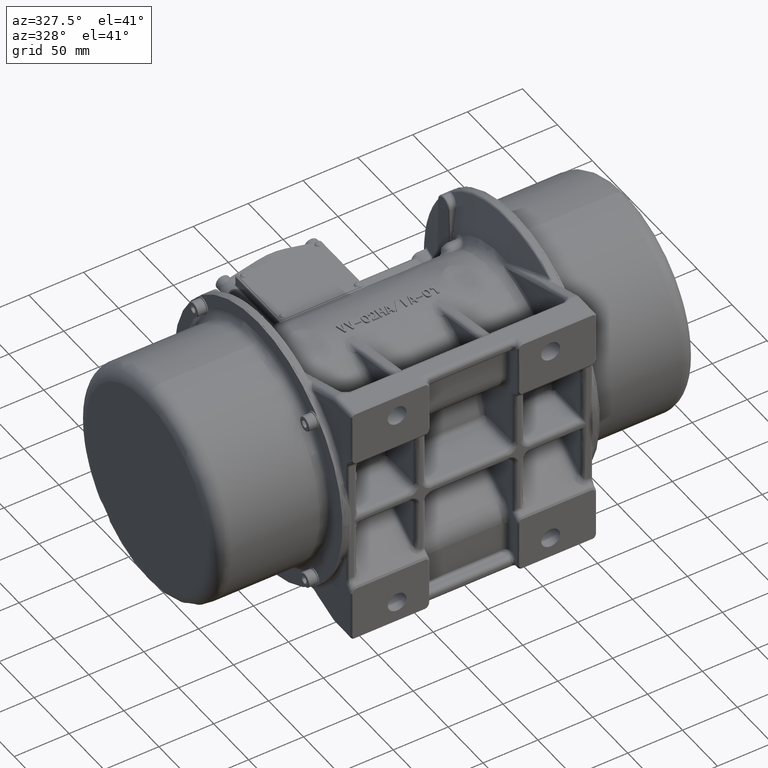
[diagram: clean part render]
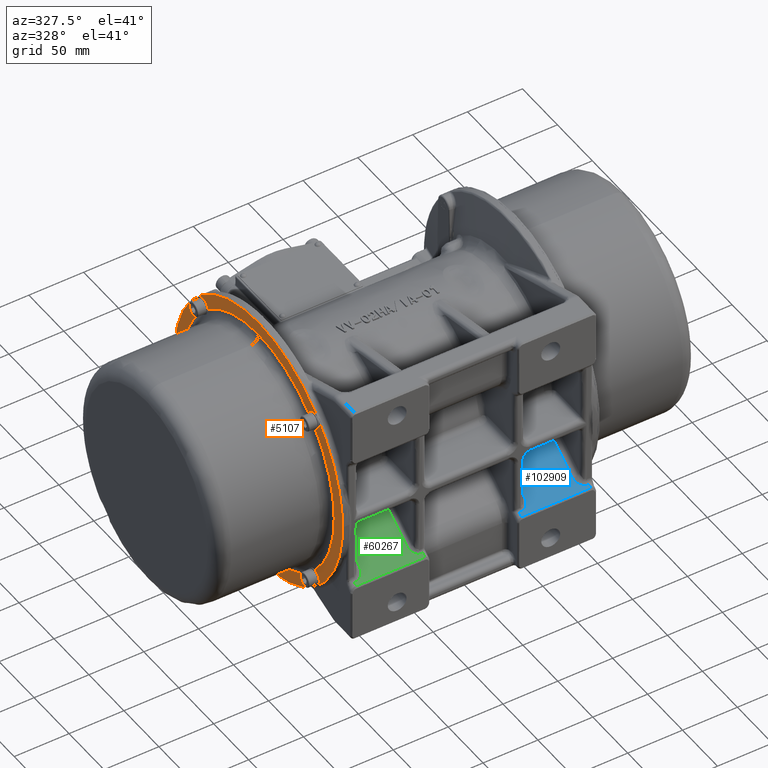
[diagram: same view with three faces highlighted in distinct colors, each labeled with its STEP entity id]
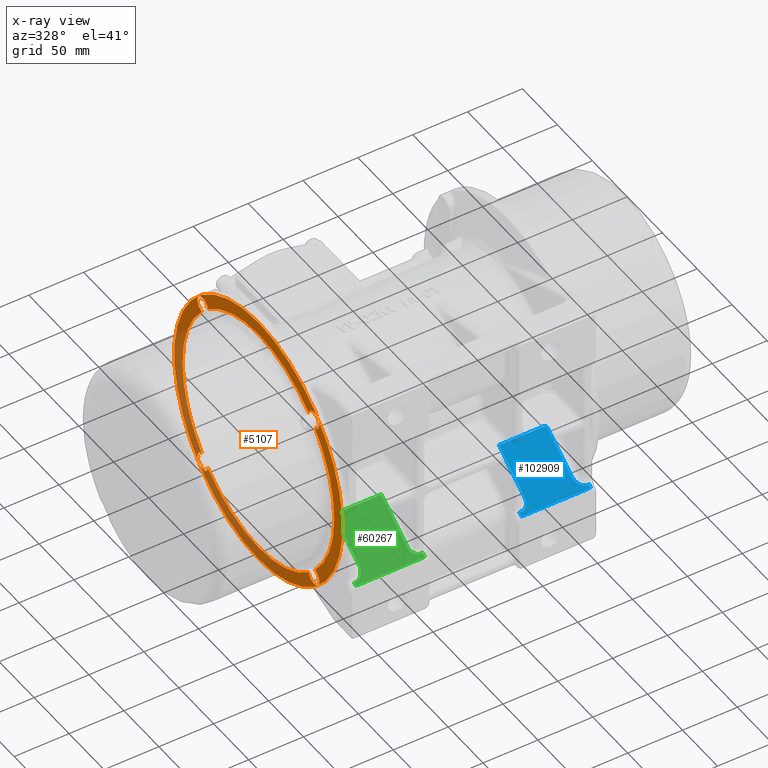
[diagram: x-ray of the same camera — body ghosted, the three highlighted faces saturated]
A machine part, auxiliary view with three faces highlighted in distinct colors.
The next image is the same camera in x-ray (body ghosted, the three faces saturated) — at least one of them is partly hidden behind the body in this view.
Their STEP definitions:

[orange] entity #5107 — the highlighted planar face has unit normal (1, -0, 0).
#123 = CARTESIAN_POINT ( 'NONE',  ( -122.5579501043699900, -42.43512348713529300, -85.86439129796041000 ) ) ;
#402 = EDGE_CURVE ( 'NONE', #37928, #8812, #198448, .T. ) ;
#441 = CARTESIAN_POINT ( 'NONE',  ( -122.5579501043699900, 121.5533431302208000, 82.02821516189440800 ) ) ;
#827 = CARTESIAN_POINT ( 'NONE',  ( -122.5579501043699900, 123.1520131149749900, 79.25116486651749900 ) ) ;
#983 = VERTEX_POINT ( 'NONE', #34490 ) ;
#1479 = AXIS2_PLACEMENT_3D ( 'NONE', #116226, #24382, #131663 ) ;
#1582 = LINE ( 'NONE', #116910, #83175 ) ;
#1692 = ORIENTED_EDGE ( 'NONE', *, *, #14365, .T. ) ;
#1714 = DIRECTION ( 'NONE',  ( -4.413306070441102900E-016, 0.06637911713969246700, 0.9977944742319205800 ) ) ;
#1756 = ORIENTED_EDGE ( 'NONE', *, *, #46479, .T. ) ;
#1763 = ORIENTED_EDGE ( 'NONE', *, *, #143350, .F. ) ;
#2779 = DIRECTION ( 'NONE',  ( 1.000000000000000000, 0.0000000000000000000, 0.0000000000000000000 ) ) ;
#3133 = VERTEX_POINT ( 'NONE', #106451 ) ;
#3137 = DIRECTION ( 'NONE',  ( -4.413306087244054600E-016, -0.8214938355801247900, -0.5702173954763699600 ) ) ;
#3880 = ORIENTED_EDGE ( 'NONE', *, *, #85760, .T. ) ;
#4593 = CARTESIAN_POINT ( 'NONE',  ( -122.5579501043699900, -46.96143078841290500, 72.92704328585830400 ) ) ;
#4626 = CARTESIAN_POINT ( 'NONE',  ( -122.5579501043699900, 117.6164033961270000, 86.78929593267129400 ) ) ;
#5042 = VERTEX_POINT ( 'NONE', #66631 ) ;
#5107 = ADVANCED_FACE ( 'NONE', ( #106109, #182882 ), #144370, .F. ) ;
#5264 = CARTESIAN_POINT ( 'NONE',  ( -122.5579501043699900, -43.44107619995135400, -79.54951288348729600 ) ) ;
#5447 = VECTOR ( 'NONE', #184755, 1000.000000000000000 ) ;
#5703 = EDGE_CURVE ( 'NONE', #51938, #29665, #115517, .T. ) ;
#5785 = CARTESIAN_POINT ( 'NONE',  ( -122.5579501043699900, -49.60227996680340100, 75.27288241741351300 ) ) ;
#5824 = DIRECTION ( 'NONE',  ( -3.435888488423885500E-024, -0.7964376394296620600, 0.6047206681598600300 ) ) ;
#5827 = EDGE_CURVE ( 'NONE', #40539, #152991, #187550, .T. ) ;
#5902 = CARTESIAN_POINT ( 'NONE',  ( -122.5579501043699900, 115.6579495670220000, -79.54951288348570400 ) ) ;
#5932 = DIRECTION ( 'NONE',  ( 0.0000000000000000000, -0.4927323153722851200, -0.8701809383041362300 ) ) ;
#6091 = CARTESIAN_POINT ( 'NONE',  ( -122.5579501043699900, 122.1843066043030500, -83.24500524877778700 ) ) ;
#6304 = VERTEX_POINT ( 'NONE', #56959 ) ;
#6778 = DIRECTION ( 'NONE',  ( 1.000000000000000000, -4.855181942073610000E-024, 8.000522628532950400E-024 ) ) ;
#6885 = DIRECTION ( 'NONE',  ( 1.000000000000000000, -6.427852285303269600E-024, 1.572670343229676800E-024 ) ) ;
#6941 = ORIENTED_EDGE ( 'NONE', *, *, #29259, .F. ) ;
#6988 = CARTESIAN_POINT ( 'NONE',  ( -122.5579501043699900, 120.5636796360500000, 85.22259075090799700 ) ) ;
#7015 = VECTOR ( 'NONE', #167782, 1000.000000000000100 ) ;
#7746 = EDGE_CURVE ( 'NONE', #92598, #177953, #110379, .T. ) ;
#7819 = ORIENTED_EDGE ( 'NONE', *, *, #100103, .F. ) ;
#7904 = CARTESIAN_POINT ( 'NONE',  ( -122.5579501043699900, 109.0354799693929900, 83.06986747194709200 ) ) ;
#7968 = EDGE_CURVE ( 'NONE', #77160, #60892, #71825, .T. ) ;
#8122 = DIRECTION ( 'NONE',  ( 0.0000000000000000000, -7.546446826369151700E-015, 1.000000000000000000 ) ) ;
#8363 = VERTEX_POINT ( 'NONE', #52361 ) ;
#8498 = DIRECTION ( 'NONE',  ( 1.000000000000000000, 0.0000000000000000000, 0.0000000000000000000 ) ) ;
#8524 = ORIENTED_EDGE ( 'NONE', *, *, #42737, .F. ) ;
#8731 = EDGE_CURVE ( 'NONE', #159889, #169447, #155751, .T. ) ;
#8772 = EDGE_CURVE ( 'NONE', #92598, #18561, #69359, .T. ) ;
#8812 = VERTEX_POINT ( 'NONE', #77035 ) ;
#8862 = DIRECTION ( 'NONE',  ( -4.413305907188179500E-016, 0.9875484266906049400, 0.1573153042170745100 ) ) ;
#8881 = DIRECTION ( 'NONE',  ( 1.000000000000000000, -6.427852285303269600E-024, 1.572670343229675200E-024 ) ) ;
#9049 = ORIENTED_EDGE ( 'NONE', *, *, #7968, .T. ) ;
#9248 = CARTESIAN_POINT ( 'NONE',  ( -122.5579501043699900, 123.0645627672016100, -78.36964810185759200 ) ) ;
#9535 = VERTEX_POINT ( 'NONE', #108153 ) ;
#9657 = CARTESIAN_POINT ( 'NONE',  ( -122.5579501043699900, 121.9570964510734000, -78.44480532800051300 ) ) ;
#9698 = LINE ( 'NONE', #46462, #91357 ) ;
#9913 = DIRECTION ( 'NONE',  ( 0.0000000000000000000, -0.8701809383041406700, 0.4927323153722770700 ) ) ;
#10010 = LINE ( 'NONE', #64159, #46023 ) ;
#10205 = ORIENTED_EDGE ( 'NONE', *, *, #68402, .T. ) ;
#10318 = ORIENTED_EDGE ( 'NONE', *, *, #11044, .F. ) ;
#10504 = ORIENTED_EDGE ( 'NONE', *, *, #169812, .F. ) ;
#10558 = ORIENTED_EDGE ( 'NONE', *, *, #137649, .F. ) ;
#10662 = CIRCLE ( 'NONE', #68467, 120.5000000054873900 ) ;
#11032 = DIRECTION ( 'NONE',  ( -4.413306121201160500E-016, -0.8701809383041391200, 0.4927323153722800200 ) ) ;
#11044 = EDGE_CURVE ( 'NONE', #171014, #118525, #179200, .T. ) ;
#11134 = EDGE_CURVE ( 'NONE', #25755, #151514, #191234, .T. ) ;
#11172 = CIRCLE ( 'NONE', #109006, 7.500000000000005300 ) ;
#11563 = DIRECTION ( 'NONE',  ( 8.113721516394350200E-024, 0.02378108953434726300, -0.9997171898995033100 ) ) ;
#11757 = LINE ( 'NONE', #152313, #7015 ) ;
#11982 = VERTEX_POINT ( 'NONE', #83522 ) ;
#12139 = EDGE_CURVE ( 'NONE', #133619, #186095, #37442, .T. ) ;
#12353 = ORIENTED_EDGE ( 'NONE', *, *, #166496, .F. ) ;
#12394 = VERTEX_POINT ( 'NONE', #71860 ) ;
#12641 = DIRECTION ( 'NONE',  ( 0.0000000000000000000, 0.4927323153722800700, 0.8701809383041390100 ) ) ;
#12645 = ORIENTED_EDGE ( 'NONE', *, *, #175115, .T. ) ;
#12924 = DIRECTION ( 'NONE',  ( 0.0000000000000000000, 0.8701809383041375600, -0.4927323153722829000 ) ) ;
#12972 = CIRCLE ( 'NONE', #101750, 7.500000000000005300 ) ;
#13059 = DIRECTION ( 'NONE',  ( 0.0000000000000000000, -0.4927323153722851200, -0.8701809383041362300 ) ) ;
#13130 = LINE ( 'NONE', #39602, #171588 ) ;
#13162 = DIRECTION ( 'NONE',  ( 0.0000000000000000000, 0.4927323153722800700, 0.8701809383041390100 ) ) ;
#13634 = VECTOR ( 'NONE', #61587, 1000.000000000000100 ) ;
#13717 = DIRECTION ( 'NONE',  ( -1.412714206686170000E-024, 0.7667831058261430600, 0.6419062771305590300 ) ) ;
#14191 = VERTEX_POINT ( 'NONE', #23266 ) ;
#14365 = EDGE_CURVE ( 'NONE', #79600, #122714, #185245, .T. ) ;
#14617 = CARTESIAN_POINT ( 'NONE',  ( -122.5579501043699900, 121.1983527949784000, -84.60460260293190500 ) ) ;
#14647 = CARTESIAN_POINT ( 'NONE',  ( -122.5579501043699900, -43.44107619995135400, -79.54951288348729600 ) ) ;
#14661 = CARTESIAN_POINT ( 'NONE',  ( -122.5579501043699900, 122.0449842442109900, 79.22483106636009600 ) ) ;
#14904 = LINE ( 'NONE', #27092, #50929 ) ;
#15054 = CIRCLE ( 'NONE', #159017, 7.500000000000009800 ) ;
#15155 = LINE ( 'NONE', #134442, #55919 ) ;
#15782 = VECTOR ( 'NONE', #13717, 1000.000000000000000 ) ;
#15995 = VERTEX_POINT ( 'NONE', #18230 ) ;
#16365 = EDGE_CURVE ( 'NONE', #58241, #193796, #9698, .T. ) ;
#16373 = CIRCLE ( 'NONE', #118399, 7.500000000000000000 ) ;
#16760 = CARTESIAN_POINT ( 'NONE',  ( -122.5579501043699900, -47.78595709633580000, 76.53363307881170400 ) ) ;
#17628 = AXIS2_PLACEMENT_3D ( 'NONE', #197036, #105108, #13162 ) ;
#17814 = DIRECTION ( 'NONE',  ( 1.000000000000000000, -4.855181942073610000E-024, 8.000522628532950400E-024 ) ) ;
#17889 = VERTEX_POINT ( 'NONE', #126751 ) ;
#17906 = CARTESIAN_POINT ( 'NONE',  ( -122.5579501043699900, -45.17886648762560500, -85.70416276516739600 ) ) ;
#18086 = ORIENTED_EDGE ( 'NONE', *, *, #128985, .F. ) ;
#18110 = EDGE_LOOP ( 'NONE', ( #27050, #6941 ) ) ;
#18230 = CARTESIAN_POINT ( 'NONE',  ( -122.5579501043699900, -47.88029052418350100, -73.50440112409600600 ) ) ;
#18561 = VERTEX_POINT ( 'NONE', #116783 ) ;
#19482 = AXIS2_PLACEMENT_3D ( 'NONE', #193741, #101810, #9913 ) ;
#19614 = ORIENTED_EDGE ( 'NONE', *, *, #92821, .F. ) ;
#19727 = CIRCLE ( 'NONE', #118107, 108.5000000000000000 ) ;
#20048 = DIRECTION ( 'NONE',  ( -4.413305894690917400E-016, 0.5702173954763616300, -0.8214938355801305600 ) ) ;
#20086 = VECTOR ( 'NONE', #185059, 1000.000000000000000 ) ;
#20088 = VERTEX_POINT ( 'NONE', #135826 ) ;
#20263 = CARTESIAN_POINT ( 'NONE',  ( -122.5579501043699900, 36.10843668353364000, 120.5000000054873700 ) ) ;
#20334 = EDGE_CURVE ( 'NONE', #100937, #188133, #81192, .T. ) ;
#20674 = DIRECTION ( 'NONE',  ( 0.0000000000000000000, 0.4927323153722800700, 0.8701809383041390100 ) ) ;
#20770 = VECTOR ( 'NONE', #86182, 999.9999999999998900 ) ;
#20798 = ORIENTED_EDGE ( 'NONE', *, *, #127858, .F. ) ;
#21113 = DIRECTION ( 'NONE',  ( 8.704931034501181600E-024, 0.7964376394296581700, -0.6047206681598651400 ) ) ;
#21331 = DIRECTION ( 'NONE',  ( 0.0000000000000000000, -0.8701809383041406700, 0.4927323153722770700 ) ) ;
#22121 = VECTOR ( 'NONE', #165101, 1000.000000000000000 ) ;
#22133 = CARTESIAN_POINT ( 'NONE',  ( -122.5579501043699900, -49.96743323723347900, 83.24500524877832700 ) ) ;
#22730 = VERTEX_POINT ( 'NONE', #59080 ) ;
#22751 = DIRECTION ( 'NONE',  ( -4.413305993835161000E-016, 0.9277825773919162700, 0.3731212793288705100 ) ) ;
#22900 = VERTEX_POINT ( 'NONE', #157618 ) ;
#23266 = CARTESIAN_POINT ( 'NONE',  ( -122.5579501043699900, 109.4967458001712000, -83.82614334955849200 ) ) ;
#23432 = DIRECTION ( 'NONE',  ( 1.000000000000000000, -6.427852285303269600E-024, 1.572670343229675200E-024 ) ) ;
#23495 = LINE ( 'NONE', #124116, #181850 ) ;
#23769 = CIRCLE ( 'NONE', #30574, 7.500000000000000000 ) ;
#23961 = LINE ( 'NONE', #57512, #141553 ) ;
#24346 = EDGE_CURVE ( 'NONE', #104828, #181562, #157217, .T. ) ;
#24382 = DIRECTION ( 'NONE',  ( 1.000000000000000000, -4.855181942073610000E-024, 8.000522628532950400E-024 ) ) ;
#24856 = CARTESIAN_POINT ( 'NONE',  ( -122.5579501043699900, 121.8191533338730000, -75.27288241741291600 ) ) ;
#25351 = CARTESIAN_POINT ( 'NONE',  ( -122.5579501043699900, -47.34816855630720800, 83.11436215363970300 ) ) ;
#25430 = ORIENTED_EDGE ( 'NONE', *, *, #76274, .F. ) ;
#25592 = ORIENTED_EDGE ( 'NONE', *, *, #66864, .T. ) ;
#25677 = EDGE_CURVE ( 'NONE', #151027, #193750, #80235, .T. ) ;
#25755 = VERTEX_POINT ( 'NONE', #72792 ) ;
#25802 = CARTESIAN_POINT ( 'NONE',  ( -122.5579501043699900, 120.8810931957887900, -78.71747223948149500 ) ) ;
#25933 = ORIENTED_EDGE ( 'NONE', *, *, #162107, .F. ) ;
#26170 = VERTEX_POINT ( 'NONE', #197237 ) ;
#26506 = ORIENTED_EDGE ( 'NONE', *, *, #150179, .F. ) ;
#26791 = VECTOR ( 'NONE', #95686, 1000.000000000000100 ) ;
#26885 = ORIENTED_EDGE ( 'NONE', *, *, #187454, .T. ) ;
#27031 = CARTESIAN_POINT ( 'NONE',  ( -122.5579501043699900, 108.2992301008276000, -80.99839100736331000 ) ) ;
#27050 = ORIENTED_EDGE ( 'NONE', *, *, #66119, .F. ) ;
#27051 = DIRECTION ( 'NONE',  ( 6.812994643556088400E-025, -0.4551870537289479100, 0.8903958367588877800 ) ) ;
#27092 = CARTESIAN_POINT ( 'NONE',  ( -122.5579501043699900, 119.8940470187816100, 84.34066187190148900 ) ) ;
#27109 = ORIENTED_EDGE ( 'NONE', *, *, #7746, .T. ) ;
#27190 = ORIENTED_EDGE ( 'NONE', *, *, #124963, .F. ) ;
#27528 = VERTEX_POINT ( 'NONE', #45759 ) ;
#27897 = ORIENTED_EDGE ( 'NONE', *, *, #67998, .T. ) ;
#28088 = VERTEX_POINT ( 'NONE', #7904 ) ;
#28652 = ORIENTED_EDGE ( 'NONE', *, *, #31202, .F. ) ;
#28970 = VERTEX_POINT ( 'NONE', #86577 ) ;
#29060 = CARTESIAN_POINT ( 'NONE',  ( -122.5579501043699900, 121.3310274344434000, -84.45524295251451000 ) ) ;
#29107 = CARTESIAN_POINT ( 'NONE',  ( -122.5579501043699900, 115.6579495670220000, -79.54951288348570400 ) ) ;
#29240 = VERTEX_POINT ( 'NONE', #14617 ) ;
#29259 = EDGE_CURVE ( 'NONE', #45772, #195661, #10662, .T. ) ;
#29286 = CARTESIAN_POINT ( 'NONE',  ( -122.5579501043699900, 111.3813191009483900, 85.71071665033770200 ) ) ;
#29377 = ORIENTED_EDGE ( 'NONE', *, *, #187165, .T. ) ;
#29614 = VERTEX_POINT ( 'NONE', #25802 ) ;
#29665 = VERTEX_POINT ( 'NONE', #102922 ) ;
#29693 = CIRCLE ( 'NONE', #74400, 7.500000000000000000 ) ;
#30031 = ORIENTED_EDGE ( 'NONE', *, *, #11134, .T. ) ;
#30062 = CARTESIAN_POINT ( 'NONE',  ( -122.5579501043699900, -50.84768940013199800, 78.36964810185818900 ) ) ;
#30071 = DIRECTION ( 'NONE',  ( 0.0000000000000000000, 0.4927323153722800700, 0.8701809383041390100 ) ) ;
#30568 = CARTESIAN_POINT ( 'NONE',  ( -122.5579501043699900, -43.44107619995135400, -79.54951288348729600 ) ) ;
#30574 = AXIS2_PLACEMENT_3D ( 'NONE', #78777, #186085, #94201 ) ;
#31202 = EDGE_CURVE ( 'NONE', #152991, #39625, #15155, .T. ) ;
#31428 = ORIENTED_EDGE ( 'NONE', *, *, #176581, .F. ) ;
#31513 = AXIS2_PLACEMENT_3D ( 'NONE', #179794, #87946, #195257 ) ;
#32221 = CARTESIAN_POINT ( 'NONE',  ( -122.5579501043699900, -43.44107619995135400, -79.54951288348729600 ) ) ;
#32499 = EDGE_CURVE ( 'NONE', #36012, #165613, #94102, .T. ) ;
#32583 = ORIENTED_EDGE ( 'NONE', *, *, #146837, .T. ) ;
#32807 = CARTESIAN_POINT ( 'NONE',  ( -122.5579501043699900, -38.83868921726079300, -82.15557409949130400 ) ) ;
#33267 = VECTOR ( 'NONE', #168754, 1000.000000000000200 ) ;
#33321 = ORIENTED_EDGE ( 'NONE', *, *, #117071, .F. ) ;
#33391 = CARTESIAN_POINT ( 'NONE',  ( -122.5579501043699900, 115.6579495670220000, -79.54951288348570400 ) ) ;
#33402 = CIRCLE ( 'NONE', #128825, 7.500000000000005300 ) ;
#33429 = CARTESIAN_POINT ( 'NONE',  ( -122.5579501043699900, -42.94323282140475600, 87.03297144022560900 ) ) ;
#33511 = ORIENTED_EDGE ( 'NONE', *, *, #89605, .T. ) ;
#33686 = CARTESIAN_POINT ( 'NONE',  ( -122.5579501043699900, 110.0443043254980200, 82.61327158030439900 ) ) ;
#33816 = AXIS2_PLACEMENT_3D ( 'NONE', #135877, #44011, #151315 ) ;
#33982 = CARTESIAN_POINT ( 'NONE',  ( -122.5579501043699900, -39.92072161149209800, 86.17198248111410000 ) ) ;
#34164 = CARTESIAN_POINT ( 'NONE',  ( -122.5579501043699900, -39.74558383466035100, 86.07586992076720400 ) ) ;
#34196 = ORIENTED_EDGE ( 'NONE', *, *, #32499, .F. ) ;
#34374 = DIRECTION ( 'NONE',  ( 1.000000000000000000, 0.0000000000000000000, 0.0000000000000000000 ) ) ;
#34379 = ORIENTED_EDGE ( 'NONE', *, *, #146010, .F. ) ;
#34490 = CARTESIAN_POINT ( 'NONE',  ( -122.5579501043699900, 111.2187352427889900, 85.59462464287810200 ) ) ;
#35055 = DIRECTION ( 'NONE',  ( 6.352095714774827600E-024, 0.9799439829746846600, -0.1992731548194859000 ) ) ;
#35307 = CARTESIAN_POINT ( 'NONE',  ( -122.5579501043699900, 36.10843668353454900, -2.428612866556249800E-014 ) ) ;
#35638 = CARTESIAN_POINT ( 'NONE',  ( -122.5579501043699900, -49.56705158039380200, 81.38310386520129200 ) ) ;
#36012 = VERTEX_POINT ( 'NONE', #147679 ) ;
#36051 = CARTESIAN_POINT ( 'NONE',  ( -122.5579501043699900, 123.1414081237604000, 79.05166950493899900 ) ) ;
#36549 = EDGE_CURVE ( 'NONE', #28088, #109810, #184804, .T. ) ;
#36607 = VECTOR ( 'NONE', #105361, 999.9999999999998900 ) ;
#36969 = DIRECTION ( 'NONE',  ( 1.000000000000000000, -4.855181942073610000E-024, 8.000522628532950400E-024 ) ) ;
#37442 = LINE ( 'NONE', #192170, #195812 ) ;
#37928 = VERTEX_POINT ( 'NONE', #145446 ) ;
#37988 = EDGE_CURVE ( 'NONE', #189985, #193796, #124570, .T. ) ;
#38152 = VECTOR ( 'NONE', #84301, 1000.000000000000200 ) ;
#38259 = CARTESIAN_POINT ( 'NONE',  ( -122.5579501043699900, -37.39596444056110900, 83.98872720771829800 ) ) ;
#38476 = EDGE_CURVE ( 'NONE', #147712, #175851, #59683, .T. ) ;
#38757 = DIRECTION ( 'NONE',  ( 1.000000000000000000, -4.855181942073610000E-024, 8.000522628532950400E-024 ) ) ;
#38948 = EDGE_CURVE ( 'NONE', #43601, #39625, #16373, .T. ) ;
#39046 = EDGE_CURVE ( 'NONE', #127568, #56641, #78746, .T. ) ;
#39211 = VECTOR ( 'NONE', #137151, 1000.000000000000100 ) ;
#39269 = CARTESIAN_POINT ( 'NONE',  ( -122.5579501043699900, -49.82811087714129900, -79.22483106636080700 ) ) ;
#39492 = ORIENTED_EDGE ( 'NONE', *, *, #45125, .T. ) ;
#39555 = LINE ( 'NONE', #139413, #161944 ) ;
#39602 = CARTESIAN_POINT ( 'NONE',  ( -122.5579501043699900, 122.0383463324970100, 79.12505161893689400 ) ) ;
#39625 = VERTEX_POINT ( 'NONE', #107444 ) ;
#40105 = EDGE_CURVE ( 'NONE', #128636, #107419, #73710, .T. ) ;
#40304 = ORIENTED_EDGE ( 'NONE', *, *, #90509, .T. ) ;
#40381 = CARTESIAN_POINT ( 'NONE',  ( -122.5579501043699900, 36.10843668353543700, -120.5000000054874200 ) ) ;
#40529 = CARTESIAN_POINT ( 'NONE',  ( -122.5579501043699900, 119.3534419323131300, 86.07586992076773000 ) ) ;
#40539 = VERTEX_POINT ( 'NONE', #129663 ) ;
#41041 = VERTEX_POINT ( 'NONE', #174901 ) ;
#41372 = VECTOR ( 'NONE', #109421, 999.9999999999998900 ) ;
#41519 = AXIS2_PLACEMENT_3D ( 'NONE', #174494, #82600, #189970 ) ;
#42004 = LINE ( 'NONE', #123, #82878 ) ;
#42216 = ORIENTED_EDGE ( 'NONE', *, *, #164422, .T. ) ;
#42504 = DIRECTION ( 'NONE',  ( 0.0000000000000000000, -0.6047206681598680200, -0.7964376394296560600 ) ) ;
#42737 = EDGE_CURVE ( 'NONE', #150304, #182421, #184232, .T. ) ;
#42853 = ORIENTED_EDGE ( 'NONE', *, *, #72551, .F. ) ;
#43007 = CARTESIAN_POINT ( 'NONE',  ( -122.5579501043699900, -45.82700022062090300, 85.48221857461879800 ) ) ;
#43354 = ORIENTED_EDGE ( 'NONE', *, *, #68123, .F. ) ;
#43601 = VERTEX_POINT ( 'NONE', #161711 ) ;
#43602 = ORIENTED_EDGE ( 'NONE', *, *, #197419, .F. ) ;
#43606 = DIRECTION ( 'NONE',  ( 1.066395156125303300E-023, 0.6419062771305665800, -0.7667831058261366200 ) ) ;
#44011 = DIRECTION ( 'NONE',  ( 1.000000000000000000, -1.285570457060653900E-023, 3.145340686459309600E-024 ) ) ;
#44073 = VECTOR ( 'NONE', #100667, 999.9999999999998900 ) ;
#44464 = DIRECTION ( 'NONE',  ( 1.000000000000000000, -6.427852285303269600E-024, 1.572670343229675200E-024 ) ) ;
#44501 = DIRECTION ( 'NONE',  ( 0.0000000000000000000, -0.8701809383041406700, 0.4927323153722770700 ) ) ;
#44722 = VECTOR ( 'NONE', #140951, 1000.000000000000100 ) ;
#44852 = LINE ( 'NONE', #45485, #85693 ) ;
#44984 = ORIENTED_EDGE ( 'NONE', *, *, #40105, .T. ) ;
#45125 = EDGE_CURVE ( 'NONE', #54627, #86605, #140521, .T. ) ;
#45424 = CARTESIAN_POINT ( 'NONE',  ( -122.5579501043699900, 115.6579495670209900, 79.54951288348669900 ) ) ;
#45485 = CARTESIAN_POINT ( 'NONE',  ( -122.5579501043699900, 114.6519968542050100, 85.86439129795981300 ) ) ;
#45511 = VECTOR ( 'NONE', #197778, 1000.000000000000000 ) ;
#45759 = CARTESIAN_POINT ( 'NONE',  ( -122.5579501043699900, -45.39953002905729600, -86.78929593267190500 ) ) ;
#45772 = VERTEX_POINT ( 'NONE', #40381 ) ;
#45833 = LINE ( 'NONE', #47398, #81878 ) ;
#45969 = DIRECTION ( 'NONE',  ( 0.0000000000000000000, 0.4927323153722800700, 0.8701809383041390100 ) ) ;
#46023 = VECTOR ( 'NONE', #95692, 1000.000000000000000 ) ;
#46054 = ORIENTED_EDGE ( 'NONE', *, *, #46909, .F. ) ;
#46364 = CARTESIAN_POINT ( 'NONE',  ( -122.5579501043699900, -49.33646976315110800, -82.02821516189500500 ) ) ;
#46462 = CARTESIAN_POINT ( 'NONE',  ( -122.5579501043699900, 112.5071727763740100, -85.11388489347149300 ) ) ;
#46479 = EDGE_CURVE ( 'NONE', #70671, #6304, #87835, .T. ) ;
#46735 = ORIENTED_EDGE ( 'NONE', *, *, #36549, .T. ) ;
#46853 = CARTESIAN_POINT ( 'NONE',  ( -122.5579501043699900, -45.91977847836010100, 85.44490644668590600 ) ) ;
#46909 = EDGE_CURVE ( 'NONE', #8363, #22900, #99797, .T. ) ;
#47211 = VERTEX_POINT ( 'NONE', #24856 ) ;
#47398 = CARTESIAN_POINT ( 'NONE',  ( -122.5579501043699900, -47.75104569475129800, -84.27326067564278800 ) ) ;
#47528 = DIRECTION ( 'NONE',  ( 7.722123123739037100E-024, 0.4123350110984288500, 0.9110322928538036000 ) ) ;
#47618 = DIRECTION ( 'NONE',  ( 0.0000000000000000000, 0.4927323153722800700, 0.8701809383041390100 ) ) ;
#47628 = DIRECTION ( 'NONE',  ( 5.269042546077268800E-024, 0.6047206681598630300, 0.7964376394296598400 ) ) ;
#48026 = VERTEX_POINT ( 'NONE', #85532 ) ;
#48093 = CARTESIAN_POINT ( 'NONE',  ( -122.5579501043699900, 36.10843668353454900, -2.428612866556249800E-014 ) ) ;
#48256 = VERTEX_POINT ( 'NONE', #127642 ) ;
#48601 = LINE ( 'NONE', #134825, #84608 ) ;
#48763 = DIRECTION ( 'NONE',  ( 0.0000000000000000000, -0.8701809383041406700, 0.4927323153722770700 ) ) ;
#49274 = ORIENTED_EDGE ( 'NONE', *, *, #5827, .F. ) ;
#49519 = CARTESIAN_POINT ( 'NONE',  ( -122.5579501043699900, -43.14272818298329800, 87.04357643144000200 ) ) ;
#49526 = AXIS2_PLACEMENT_3D ( 'NONE', #68693, #176003, #84140 ) ;
#49653 = VERTEX_POINT ( 'NONE', #60945 ) ;
#50245 = CIRCLE ( 'NONE', #90293, 7.499999999999992000 ) ;
#50358 = LINE ( 'NONE', #135987, #45511 ) ;
#50603 = CARTESIAN_POINT ( 'NONE',  ( -122.5579501043699900, 121.2715948085439900, 76.48575418666899800 ) ) ;
#50710 = AXIS2_PLACEMENT_3D ( 'NONE', #189763, #97834, #5932 ) ;
#50730 = DIRECTION ( 'NONE',  ( 0.0000000000000000000, -7.543527812202926500E-015, 1.000000000000000000 ) ) ;
#50929 = VECTOR ( 'NONE', #42504, 1000.000000000000200 ) ;
#51206 = DIRECTION ( 'NONE',  ( -4.413305912165132600E-016, 0.4927323153722826800, 0.8701809383041376700 ) ) ;
#51290 = CARTESIAN_POINT ( 'NONE',  ( -122.5579501043699900, -48.23222518836720200, 83.78561033524668700 ) ) ;
#51453 = CARTESIAN_POINT ( 'NONE',  ( -122.5579501043699900, 115.6579495670220000, -79.54951288348570400 ) ) ;
#51524 = ORIENTED_EDGE ( 'NONE', *, *, #141202, .T. ) ;
#51578 = EDGE_CURVE ( 'NONE', #9535, #156637, #151713, .T. ) ;
#51833 = AXIS2_PLACEMENT_3D ( 'NONE', #70535, #177852, #85981 ) ;
#51896 = DIRECTION ( 'NONE',  ( 0.0000000000000000000, -0.9110322928537991600, 0.4123350110984385100 ) ) ;
#51938 = VERTEX_POINT ( 'NONE', #56273 ) ;
#52105 = CIRCLE ( 'NONE', #181226, 7.500000000000009800 ) ;
#52193 = ORIENTED_EDGE ( 'NONE', *, *, #125083, .T. ) ;
#52361 = CARTESIAN_POINT ( 'NONE',  ( -122.5579501043699900, -50.68085924913700100, 81.50796671259209300 ) ) ;
#52453 = LINE ( 'NONE', #171799, #133966 ) ;
#52492 = CARTESIAN_POINT ( 'NONE',  ( -122.5579501043699900, -47.71770666602410000, -73.38830911663639300 ) ) ;
#53038 = ORIENTED_EDGE ( 'NONE', *, *, #130541, .F. ) ;
#53201 = AXIS2_PLACEMENT_3D ( 'NONE', #177770, #85897, #193223 ) ;
#53552 = ORIENTED_EDGE ( 'NONE', *, *, #24346, .F. ) ;
#54262 = CIRCLE ( 'NONE', #57339, 7.500000000000000000 ) ;
#54524 = CIRCLE ( 'NONE', #51833, 7.499999999999992000 ) ;
#54627 = VERTEX_POINT ( 'NONE', #188360 ) ;
#54680 = VERTEX_POINT ( 'NONE', #4593 ) ;
#55021 = DIRECTION ( 'NONE',  ( -4.413305993835157100E-016, 0.9977944742319203600, -0.06637911713969595100 ) ) ;
#55753 = EDGE_CURVE ( 'NONE', #195930, #121573, #125116, .T. ) ;
#55919 = VECTOR ( 'NONE', #149178, 999.9999999999998900 ) ;
#56273 = CARTESIAN_POINT ( 'NONE',  ( -122.5579501043699900, 119.1783041554823900, -72.92704328585769200 ) ) ;
#56363 = ORIENTED_EDGE ( 'NONE', *, *, #5703, .F. ) ;
#56440 = CARTESIAN_POINT ( 'NONE',  ( -122.5579501043699900, 121.9728279814952000, -78.54356017066960800 ) ) ;
#56641 = VERTEX_POINT ( 'NONE', #181193 ) ;
#56815 = CARTESIAN_POINT ( 'NONE',  ( -122.5579501043699900, -42.60903555594725100, -84.77265651225390300 ) ) ;
#56959 = CARTESIAN_POINT ( 'NONE',  ( -122.5579501043699900, -36.08235673375800400, 80.99839100736380700 ) ) ;
#57339 = AXIS2_PLACEMENT_3D ( 'NONE', #149219, #57367, #164674 ) ;
#57367 = DIRECTION ( 'NONE',  ( 1.000000000000000000, 0.0000000000000000000, 0.0000000000000000000 ) ) ;
#57435 = VERTEX_POINT ( 'NONE', #71121 ) ;
#57512 = CARTESIAN_POINT ( 'NONE',  ( -122.5579501043699900, -49.74022308400379400, 78.44480532800111000 ) ) ;
#57564 = CARTESIAN_POINT ( 'NONE',  ( -122.5579501043699900, -49.96743323723239900, -75.85402051819518500 ) ) ;
#57666 = EDGE_CURVE ( 'NONE', #27528, #147218, #50245, .T. ) ;
#57886 = CARTESIAN_POINT ( 'NONE',  ( -122.5579501043699900, 118.1366518454299900, -85.44490644668540800 ) ) ;
#58241 = VERTEX_POINT ( 'NONE', #100863 ) ;
#58288 = CARTESIAN_POINT ( 'NONE',  ( -122.5579501043699900, 115.6579495670220000, -79.54951288348570400 ) ) ;
#58381 = DIRECTION ( 'NONE',  ( 0.0000000000000000000, -0.6419062771305617000, 0.7667831058261407300 ) ) ;
#58460 = ORIENTED_EDGE ( 'NONE', *, *, #94386, .F. ) ;
#58461 = CARTESIAN_POINT ( 'NONE',  ( -122.5579501043699900, -40.37731750313479800, 85.16315812500920400 ) ) ;
#58501 = ORIENTED_EDGE ( 'NONE', *, *, #94668, .F. ) ;
#58730 = AXIS2_PLACEMENT_3D ( 'NONE', #33391, #140652, #48763 ) ;
#58938 = VECTOR ( 'NONE', #35055, 1000.000000000000100 ) ;
#58976 = ORIENTED_EDGE ( 'NONE', *, *, #38476, .F. ) ;
#59080 = CARTESIAN_POINT ( 'NONE',  ( -122.5579501043699900, 123.0305099749666100, -78.17279467295429600 ) ) ;
#59448 = ORIENTED_EDGE ( 'NONE', *, *, #107037, .T. ) ;
#59683 = LINE ( 'NONE', #117077, #131641 ) ;
#59840 = CARTESIAN_POINT ( 'NONE',  ( -122.5579501043699900, -43.44107619995135400, -79.54951288348729600 ) ) ;
#59857 = CIRCLE ( 'NONE', #130576, 7.499999999999992000 ) ;
#60450 = ORIENTED_EDGE ( 'NONE', *, *, #103643, .T. ) ;
#60617 = CIRCLE ( 'NONE', #50710, 7.500000000000000000 ) ;
#60618 = CARTESIAN_POINT ( 'NONE',  ( -122.5579501043699900, -47.16948071888300100, -74.35349229141779400 ) ) ;
#60847 = LINE ( 'NONE', #46853, #20086 ) ;
#60861 = DIRECTION ( 'NONE',  ( 0.0000000000000000000, -0.4927323153722851200, -0.8701809383041362300 ) ) ;
#60892 = VERTEX_POINT ( 'NONE', #154978 ) ;
#60945 = CARTESIAN_POINT ( 'NONE',  ( -122.5579501043699900, 112.1375949785617900, -86.17198248111360200 ) ) ;
#61042 = VECTOR ( 'NONE', #11032, 1000.000000000000100 ) ;
#61142 = CARTESIAN_POINT ( 'NONE',  ( -122.5579501043699900, 115.6579495670220000, -79.54951288348570400 ) ) ;
#61521 = CARTESIAN_POINT ( 'NONE',  ( -122.5579501043699900, 121.7030613264134000, -75.11029855925350800 ) ) ;
#61587 = DIRECTION ( 'NONE',  ( 4.663547702629870600E-024, -0.02378108953435420500, 0.9997171898995030900 ) ) ;
#62138 = CARTESIAN_POINT ( 'NONE',  ( -122.5579501043699900, 122.6163188974604000, 82.34792247845319900 ) ) ;
#62139 = CARTESIAN_POINT ( 'NONE',  ( -122.5579501043699900, -37.27987243310149500, 83.82614334955890500 ) ) ;
#62266 = EDGE_CURVE ( 'NONE', #95292, #177953, #44852, .T. ) ;
#62280 = DIRECTION ( 'NONE',  ( -4.413305993835158600E-016, 0.6740119625928449000, 0.7387204303941657900 ) ) ;
#62895 = CARTESIAN_POINT ( 'NONE',  ( -122.5579501043699900, 120.8539701590916000, -75.82110836455399300 ) ) ;
#63028 = ORIENTED_EDGE ( 'NONE', *, *, #147603, .F. ) ;
#63530 = DIRECTION ( 'NONE',  ( 0.0000000000000000000, -7.543527812202926500E-015, 1.000000000000000000 ) ) ;
#63966 = CARTESIAN_POINT ( 'NONE',  ( -122.5579501043699900, -44.88995432382995400, 72.19079341729168700 ) ) ;
#64159 = CARTESIAN_POINT ( 'NONE',  ( -122.5579501043699900, 110.4619289749526000, -83.27791740241730200 ) ) ;
#64268 = CIRCLE ( 'NONE', #178192, 7.500000000000005300 ) ;
#64371 = EDGE_CURVE ( 'NONE', #65980, #165613, #181281, .T. ) ;
#64964 = CARTESIAN_POINT ( 'NONE',  ( -122.5579501043699900, 119.3042047023946000, 74.29647055186960400 ) ) ;
#64966 = DIRECTION ( 'NONE',  ( 1.000000000000000000, -8.000522628532879900E-024, -4.855181942073610000E-024 ) ) ;
#65018 = CARTESIAN_POINT ( 'NONE',  ( -122.5579501043699900, -47.00592547010490600, -83.45660523984210500 ) ) ;
#65240 = EDGE_CURVE ( 'NONE', #12394, #107927, #109190, .T. ) ;
#65760 = ORIENTED_EDGE ( 'NONE', *, *, #186238, .T. ) ;
#65980 = VERTEX_POINT ( 'NONE', #139911 ) ;
#66119 = EDGE_CURVE ( 'NONE', #195661, #45772, #72948, .T. ) ;
#66631 = CARTESIAN_POINT ( 'NONE',  ( -122.5579501043699900, -45.59166379286139700, -86.73456493655010000 ) ) ;
#66829 = CARTESIAN_POINT ( 'NONE',  ( -122.5579501043699900, 36.10843668353454900, -2.428612866556249800E-014 ) ) ;
#66864 = EDGE_CURVE ( 'NONE', #75019, #177838, #183262, .T. ) ;
#66908 = DIRECTION ( 'NONE',  ( 0.0000000000000000000, -0.8701809383041406700, 0.4927323153722770700 ) ) ;
#67141 = VERTEX_POINT ( 'NONE', #184964 ) ;
#67172 = DIRECTION ( 'NONE',  ( 1.300889609807033800E-023, 0.9110322928538019400, -0.4123350110984324000 ) ) ;
#67267 = EDGE_CURVE ( 'NONE', #27528, #132757, #108815, .T. ) ;
#67640 = LINE ( 'NONE', #100307, #190069 ) ;
#67832 = CIRCLE ( 'NONE', #72883, 108.5000000000000000 ) ;
#67998 = EDGE_CURVE ( 'NONE', #107419, #194592, #15054, .T. ) ;
#68123 = EDGE_CURVE ( 'NONE', #22900, #60892, #118166, .T. ) ;
#68187 = ORIENTED_EDGE ( 'NONE', *, *, #12139, .F. ) ;
#68259 = CARTESIAN_POINT ( 'NONE',  ( -122.5579501043699900, 117.6313880133926100, -84.45655493531150200 ) ) ;
#68358 = VERTEX_POINT ( 'NONE', #38259 ) ;
#68361 = VECTOR ( 'NONE', #67172, 1000.000000000000100 ) ;
#68402 = EDGE_CURVE ( 'NONE', #109810, #70671, #67832, .T. ) ;
#68467 = AXIS2_PLACEMENT_3D ( 'NONE', #48093, #155404, #63530 ) ;
#68550 = VERTEX_POINT ( 'NONE', #57564 ) ;
#68693 = CARTESIAN_POINT ( 'NONE',  ( -122.5579501043699900, -43.44107619995135400, -79.54951288348729600 ) ) ;
#68821 = VECTOR ( 'NONE', #51206, 1000.000000000000100 ) ;
#68832 = AXIS2_PLACEMENT_3D ( 'NONE', #5264, #112585, #20674 ) ;
#69019 = EDGE_CURVE ( 'NONE', #17889, #68550, #101825, .T. ) ;
#69188 = CIRCLE ( 'NONE', #180932, 7.499999999999992000 ) ;
#69359 = LINE ( 'NONE', #168897, #150892 ) ;
#69390 = AXIS2_PLACEMENT_3D ( 'NONE', #45424, #152725, #60861 ) ;
#69589 = ORIENTED_EDGE ( 'NONE', *, *, #83667, .F. ) ;
#69760 = CIRCLE ( 'NONE', #129300, 108.5000000000000000 ) ;
#70031 = CIRCLE ( 'NONE', #185507, 7.499999999999992000 ) ;
#70386 = DIRECTION ( 'NONE',  ( 1.000000000000000000, -6.427852285303269600E-024, 1.572670343229675200E-024 ) ) ;
#70535 = CARTESIAN_POINT ( 'NONE',  ( -122.5579501043699900, -43.44107619995135400, -79.54951288348729600 ) ) ;
#70604 = LINE ( 'NONE', #167874, #147338 ) ;
#70669 = ORIENTED_EDGE ( 'NONE', *, *, #154696, .T. ) ;
#70671 = VERTEX_POINT ( 'NONE', #120102 ) ;
#70726 = VECTOR ( 'NONE', #191410, 1000.000000000000200 ) ;
#70909 = VECTOR ( 'NONE', #138123, 1000.000000000000100 ) ;
#71121 = CARTESIAN_POINT ( 'NONE',  ( -122.5579501043699900, 119.2227988371745900, 83.45660523984150800 ) ) ;
#71502 = DIRECTION ( 'NONE',  ( -4.413306039531132500E-016, 0.4927323153722826800, 0.8701809383041376700 ) ) ;
#71657 = VERTEX_POINT ( 'NONE', #195805 ) ;
#71757 = AXIS2_PLACEMENT_3D ( 'NONE', #84965, #192319, #100392 ) ;
#71825 = CIRCLE ( 'NONE', #1479, 7.500000000000005300 ) ;
#71860 = CARTESIAN_POINT ( 'NONE',  ( -122.5579501043699900, 111.0555625843304000, 82.15557409949080600 ) ) ;
#71892 = DIRECTION ( 'NONE',  ( -4.413305967458174700E-016, 0.7387204303941729000, -0.6740119625928369100 ) ) ;
#72055 = ORIENTED_EDGE ( 'NONE', *, *, #162975, .F. ) ;
#72385 = EDGE_CURVE ( 'NONE', #67141, #25755, #19727, .T. ) ;
#72551 = EDGE_CURVE ( 'NONE', #189985, #48256, #10010, .T. ) ;
#72653 = ORIENTED_EDGE ( 'NONE', *, *, #65240, .F. ) ;
#72792 = CARTESIAN_POINT ( 'NONE',  ( -122.5579501043699800, 36.10843668353535200, -108.5000000000000300 ) ) ;
#72883 = AXIS2_PLACEMENT_3D ( 'NONE', #162258, #70386, #177698 ) ;
#72948 = CIRCLE ( 'NONE', #108796, 120.5000000054873900 ) ;
#72977 = AXIS2_PLACEMENT_3D ( 'NONE', #84611, #191969, #100045 ) ;
#73011 = DIRECTION ( 'NONE',  ( 1.000000000000000000, 0.0000000000000000000, 0.0000000000000000000 ) ) ;
#73501 = CIRCLE ( 'NONE', #110753, 7.500000000000005300 ) ;
#73643 = EDGE_CURVE ( 'NONE', #40539, #106905, #86673, .T. ) ;
#73710 = CIRCLE ( 'NONE', #182798, 7.500000000000009800 ) ;
#73727 = EDGE_CURVE ( 'NONE', #142366, #114513, #45833, .T. ) ;
#73742 = DIRECTION ( 'NONE',  ( 0.0000000000000000000, -0.8701809383041406700, 0.4927323153722770700 ) ) ;
#74140 = VECTOR ( 'NONE', #121995, 1000.000000000000100 ) ;
#74389 = ORIENTED_EDGE ( 'NONE', *, *, #73727, .F. ) ;
#74400 = AXIS2_PLACEMENT_3D ( 'NONE', #74933, #182241, #90375 ) ;
#74702 = VECTOR ( 'NONE', #155886, 999.9999999999998900 ) ;
#74933 = CARTESIAN_POINT ( 'NONE',  ( -122.5579501043699900, 115.6579495670209900, 79.54951288348669900 ) ) ;
#75019 = VERTEX_POINT ( 'NONE', #63966 ) ;
#75260 = DIRECTION ( 'NONE',  ( 0.0000000000000000000, 0.4927323153722800700, 0.8701809383041390100 ) ) ;
#75565 = ORIENTED_EDGE ( 'NONE', *, *, #55753, .T. ) ;
#75567 = ORIENTED_EDGE ( 'NONE', *, *, #57666, .T. ) ;
#75637 = ORIENTED_EDGE ( 'NONE', *, *, #190898, .F. ) ;
#76028 = EDGE_CURVE ( 'NONE', #54680, #75019, #33402, .T. ) ;
#76274 = EDGE_CURVE ( 'NONE', #29614, #195964, #167706, .T. ) ;
#76313 = CARTESIAN_POINT ( 'NONE',  ( -122.5579501043699900, 115.6579495670220000, -79.54951288348570400 ) ) ;
#76591 = DIRECTION ( 'NONE',  ( 0.0000000000000000000, -0.8701809383041406700, 0.4927323153722770700 ) ) ;
#76793 = DIRECTION ( 'NONE',  ( 1.000000000000000000, -4.855181942073610000E-024, 8.000522628532950400E-024 ) ) ;
#76882 = VECTOR ( 'NONE', #134854, 1000.000000000000200 ) ;
#77035 = CARTESIAN_POINT ( 'NONE',  ( -122.5579501043699900, 115.1601061884744000, -87.03297144022511100 ) ) ;
#77160 = VERTEX_POINT ( 'NONE', #22133 ) ;
#77430 = CARTESIAN_POINT ( 'NONE',  ( -122.5579501043699900, -37.82743095842829500, -82.61327158030499600 ) ) ;
#78109 = EDGE_CURVE ( 'NONE', #177838, #154972, #54524, .T. ) ;
#78693 = AXIS2_PLACEMENT_3D ( 'NONE', #128834, #36969, #144231 ) ;
#78746 = LINE ( 'NONE', #39269, #196356 ) ;
#78777 = CARTESIAN_POINT ( 'NONE',  ( -122.5579501043699900, 115.6579495670209900, 79.54951288348669900 ) ) ;
#79029 = ORIENTED_EDGE ( 'NONE', *, *, #111374, .F. ) ;
#79600 = VERTEX_POINT ( 'NONE', #84478 ) ;
#79713 = CARTESIAN_POINT ( 'NONE',  ( -122.5579501043699900, 121.8125994487021900, -81.28730317115989100 ) ) ;
#79781 = VECTOR ( 'NONE', #95118, 1000.000000000000100 ) ;
#79927 = DIRECTION ( 'NONE',  ( -6.206880632946357700E-024, -0.2456428507577574400, 0.9693604024673188000 ) ) ;
#80113 = LINE ( 'NONE', #192571, #44073 ) ;
#80235 = CIRCLE ( 'NONE', #153066, 7.500000000000009800 ) ;
#80420 = VECTOR ( 'NONE', #170202, 1000.000000000000000 ) ;
#80554 = CARTESIAN_POINT ( 'NONE',  ( -122.5579501043699900, 108.2992301008266100, 80.99839100736430500 ) ) ;
#80574 = CARTESIAN_POINT ( 'NONE',  ( -122.5579501043699900, -48.66421982871909800, 78.71747223948209200 ) ) ;
#80820 = VECTOR ( 'NONE', #191195, 1000.000000000000200 ) ;
#80947 = CARTESIAN_POINT ( 'NONE',  ( -122.5579501043699900, 115.6579495670209900, 79.54951288348669900 ) ) ;
#81192 = LINE ( 'NONE', #46364, #162755 ) ;
#81565 = ORIENTED_EDGE ( 'NONE', *, *, #178234, .F. ) ;
#81625 = DIRECTION ( 'NONE',  ( -5.204608728892597500E-025, 0.1992731548194823800, 0.9799439829746854300 ) ) ;
#81786 = VERTEX_POINT ( 'NONE', #152476 ) ;
#81878 = VECTOR ( 'NONE', #141975, 1000.000000000000000 ) ;
#82214 = DIRECTION ( 'NONE',  ( 0.0000000000000000000, -7.546446826369151700E-015, 1.000000000000000000 ) ) ;
#82228 = LINE ( 'NONE', #77430, #5447 ) ;
#82507 = ORIENTED_EDGE ( 'NONE', *, *, #163492, .T. ) ;
#82600 = DIRECTION ( 'NONE',  ( 1.000000000000000000, -4.855181942073610000E-024, 8.000522628532950400E-024 ) ) ;
#82878 = VECTOR ( 'NONE', #107432, 1000.000000000000200 ) ;
#83175 = VECTOR ( 'NONE', #194091, 999.9999999999998900 ) ;
#83522 = CARTESIAN_POINT ( 'NONE',  ( -122.5579501043699900, -47.13656856524460200, 73.02315584620521300 ) ) ;
#83667 = EDGE_CURVE ( 'NONE', #3133, #142366, #23495, .T. ) ;
#83861 = CARTESIAN_POINT ( 'NONE',  ( -122.5579501043699900, 115.2334883024724100, -85.92990964896169700 ) ) ;
#84009 = LINE ( 'NONE', #114635, #129620 ) ;
#84092 = ORIENTED_EDGE ( 'NONE', *, *, #164134, .F. ) ;
#84140 = DIRECTION ( 'NONE',  ( 0.0000000000000000000, 0.4927323153722800700, 0.8701809383041390100 ) ) ;
#84301 = DIRECTION ( 'NONE',  ( -4.413306092979401800E-016, -0.5702173954763676300, 0.8214938355801263400 ) ) ;
#84478 = CARTESIAN_POINT ( 'NONE',  ( -122.5579501043699900, 114.2812313564896000, 86.92207329143130300 ) ) ;
#84608 = VECTOR ( 'NONE', #58381, 1000.000000000000000 ) ;
#84611 = CARTESIAN_POINT ( 'NONE',  ( -122.5579501043699900, -43.44107619995245500, 79.54951288348620200 ) ) ;
#84652 = EDGE_CURVE ( 'NONE', #151027, #37928, #126489, .T. ) ;
#84953 = ORIENTED_EDGE ( 'NONE', *, *, #126646, .T. ) ;
#84965 = CARTESIAN_POINT ( 'NONE',  ( -122.5579501043699900, 115.6579495670220000, -79.54951288348570400 ) ) ;
#85148 = VERTEX_POINT ( 'NONE', #131691 ) ;
#85183 = EDGE_CURVE ( 'NONE', #152089, #86605, #1582, .T. ) ;
#85251 = ORIENTED_EDGE ( 'NONE', *, *, #148013, .F. ) ;
#85303 = CARTESIAN_POINT ( 'NONE',  ( -122.5579501043699900, -43.44107619995245500, 79.54951288348620200 ) ) ;
#85451 = CARTESIAN_POINT ( 'NONE',  ( -122.5579501043699900, -47.13656856524345800, -86.07586992076835500 ) ) ;
#85491 = AXIS2_PLACEMENT_3D ( 'NONE', #126240, #34374, #141680 ) ;
#85532 = CARTESIAN_POINT ( 'NONE',  ( -122.5579501043699900, -45.41451464632289300, 84.45655493531199900 ) ) ;
#85563 = LINE ( 'NONE', #33686, #44722 ) ;
#85693 = VECTOR ( 'NONE', #183009, 999.9999999999998900 ) ;
#85760 = EDGE_CURVE ( 'NONE', #139749, #164688, #54262, .T. ) ;
#85897 = DIRECTION ( 'NONE',  ( 1.000000000000000000, -8.000522628532879900E-024, -4.855181942073610000E-024 ) ) ;
#85981 = DIRECTION ( 'NONE',  ( 0.0000000000000000000, 0.4927323153722800700, 0.8701809383041390100 ) ) ;
#86111 = VECTOR ( 'NONE', #8862, 1000.000000000000100 ) ;
#86182 = DIRECTION ( 'NONE',  ( -4.413305931111589500E-016, 0.9580069404083697600, -0.2867450123879999900 ) ) ;
#86218 = EDGE_CURVE ( 'NONE', #166629, #133619, #138171, .T. ) ;
#86577 = CARTESIAN_POINT ( 'NONE',  ( -122.5579501043699900, 117.1068276908995900, -72.19079341729118900 ) ) ;
#86605 = VERTEX_POINT ( 'NONE', #104046 ) ;
#86673 = CIRCLE ( 'NONE', #69390, 7.500000000000000000 ) ;
#86970 = LINE ( 'NONE', #176238, #122955 ) ;
#87711 = DIRECTION ( 'NONE',  ( 1.000000000000000000, -4.855181942073610000E-024, 8.000522628532950400E-024 ) ) ;
#87782 = AXIS2_PLACEMENT_3D ( 'NONE', #58288, #165616, #73742 ) ;
#87835 = CIRCLE ( 'NONE', #119053, 108.5000000000000000 ) ;
#87946 = DIRECTION ( 'NONE',  ( 1.000000000000000000, -1.285570457060653900E-023, 3.145340686459309600E-024 ) ) ;
#88440 = VERTEX_POINT ( 'NONE', #30062 ) ;
#88843 = LINE ( 'NONE', #9657, #124848 ) ;
#89605 = EDGE_CURVE ( 'NONE', #49653, #8812, #142686, .T. ) ;
#89747 = CARTESIAN_POINT ( 'NONE',  ( -122.5579501043699900, 120.9109918986392000, -75.90325774811209700 ) ) ;
#90022 = LINE ( 'NONE', #197750, #126036 ) ;
#90293 = AXIS2_PLACEMENT_3D ( 'NONE', #30568, #137839, #45969 ) ;
#90375 = DIRECTION ( 'NONE',  ( 0.0000000000000000000, -0.4927323153722851200, -0.8701809383041362300 ) ) ;
#90509 = EDGE_CURVE ( 'NONE', #159889, #133950, #29693, .T. ) ;
#91357 = VECTOR ( 'NONE', #128283, 1000.000000000000100 ) ;
#91452 = CIRCLE ( 'NONE', #85491, 7.500000000000000000 ) ;
#91553 = VERTEX_POINT ( 'NONE', #170824 ) ;
#91741 = CIRCLE ( 'NONE', #119532, 7.500000000000009800 ) ;
#91763 = DIRECTION ( 'NONE',  ( 0.0000000000000000000, -0.8701809383041406700, 0.4927323153722770700 ) ) ;
#92244 = CARTESIAN_POINT ( 'NONE',  ( -122.5579501043699900, 109.1315925297400000, 83.24500524877889500 ) ) ;
#92270 = CARTESIAN_POINT ( 'NONE',  ( -122.5579501043699900, -43.01661493540270000, 85.92990964896220900 ) ) ;
#92303 = ORIENTED_EDGE ( 'NONE', *, *, #169765, .F. ) ;
#92493 = CARTESIAN_POINT ( 'NONE',  ( -122.5579501043699900, -46.45695600462589400, -75.20463198710400800 ) ) ;
#92526 = VERTEX_POINT ( 'NONE', #49519 ) ;
#92598 = VERTEX_POINT ( 'NONE', #4626 ) ;
#92821 = EDGE_CURVE ( 'NONE', #101575, #88440, #144412, .T. ) ;
#93301 = ORIENTED_EDGE ( 'NONE', *, *, #95804, .F. ) ;
#93880 = CARTESIAN_POINT ( 'NONE',  ( -122.5579501043699900, 119.9345800330936000, 73.38830911663569600 ) ) ;
#94102 = LINE ( 'NONE', #111918, #175704 ) ;
#94201 = DIRECTION ( 'NONE',  ( 0.0000000000000000000, -0.4927323153722851200, -0.8701809383041362300 ) ) ;
#94386 = EDGE_CURVE ( 'NONE', #48026, #91553, #122503, .T. ) ;
#94636 = CARTESIAN_POINT ( 'NONE',  ( -122.5579501043699900, 115.6579495670209900, 79.54951288348669900 ) ) ;
#94668 = EDGE_CURVE ( 'NONE', #101357, #133950, #84009, .T. ) ;
#94685 = AXIS2_PLACEMENT_3D ( 'NONE', #115318, #23432, #130721 ) ;
#94877 = CARTESIAN_POINT ( 'NONE',  ( -122.5579501043699900, 118.7217082638397900, -73.93586764196260200 ) ) ;
#95118 = DIRECTION ( 'NONE',  ( -4.413305993835157600E-016, 0.5702173954763616300, -0.8214938355801305600 ) ) ;
#95292 = VERTEX_POINT ( 'NONE', #128533 ) ;
#95361 = CARTESIAN_POINT ( 'NONE',  ( -122.5579501043699900, -42.26121141832329900, -86.95612608366690200 ) ) ;
#95686 = DIRECTION ( 'NONE',  ( -4.413306029196390500E-016, -0.9875484266906061600, -0.1573153042170680200 ) ) ;
#95692 = DIRECTION ( 'NONE',  ( 9.251237354566747300E-024, 0.7667831058261338500, 0.6419062771305699100 ) ) ;
#95804 = EDGE_CURVE ( 'NONE', #174841, #11982, #11757, .T. ) ;
#96399 = DIRECTION ( 'NONE',  ( 0.0000000000000000000, -0.4927323153722851200, -0.8701809383041362300 ) ) ;
#96539 = VERTEX_POINT ( 'NONE', #68259 ) ;
#97154 = CIRCLE ( 'NONE', #128890, 7.500000000000005300 ) ;
#97834 = DIRECTION ( 'NONE',  ( 1.000000000000000000, 0.0000000000000000000, 0.0000000000000000000 ) ) ;
#97861 = AXIS2_PLACEMENT_3D ( 'NONE', #100426, #8498, #115820 ) ;
#98105 = CARTESIAN_POINT ( 'NONE',  ( -122.5579501043699900, -50.93513974790519700, -79.25116486651819500 ) ) ;
#98270 = VERTEX_POINT ( 'NONE', #62139 ) ;
#98690 = CARTESIAN_POINT ( 'NONE',  ( -122.5579501043699900, -43.44107619995245500, 79.54951288348620200 ) ) ;
#98797 = CARTESIAN_POINT ( 'NONE',  ( -122.5579501043699900, -84.39156332195300100, -9.306583282230081200E-013 ) ) ;
#99783 = DIRECTION ( 'NONE',  ( -4.413306000565669000E-016, -0.2867450123880029800, -0.9580069404083687600 ) ) ;
#99797 = LINE ( 'NONE', #157088, #58938 ) ;
#100045 = DIRECTION ( 'NONE',  ( 0.0000000000000000000, 0.8701809383041375600, -0.4927323153722829000 ) ) ;
#100057 = DIRECTION ( 'NONE',  ( 1.000000000000000000, -6.427852285303269600E-024, 1.572670343229675200E-024 ) ) ;
#100103 = EDGE_CURVE ( 'NONE', #41041, #140462, #196069, .T. ) ;
#100233 = VERTEX_POINT ( 'NONE', #145096 ) ;
#100307 = CARTESIAN_POINT ( 'NONE',  ( -122.5579501043699900, 112.0116944316474100, 84.80255521510390800 ) ) ;
#100323 = DIRECTION ( 'NONE',  ( 1.277726921902424100E-023, 0.9997171898995030900, 0.02378108953435075600 ) ) ;
#100392 = DIRECTION ( 'NONE',  ( 0.0000000000000000000, -0.8701809383041406700, 0.4927323153722770700 ) ) ;
#100426 = CARTESIAN_POINT ( 'NONE',  ( -122.5579501043699900, 115.6579495670209900, 79.54951288348669900 ) ) ;
#100430 = VERTEX_POINT ( 'NONE', #168321 ) ;
#100667 = DIRECTION ( 'NONE',  ( -4.413306083625861700E-016, -0.7387204303941682400, 0.6740119625928422400 ) ) ;
#100731 = DIRECTION ( 'NONE',  ( 0.0000000000000000000, 0.8701809383041375600, -0.4927323153722829000 ) ) ;
#100747 = CIRCLE ( 'NONE', #58730, 7.500000000000009800 ) ;
#100827 = CARTESIAN_POINT ( 'NONE',  ( -122.5579501043699900, 36.10843668353454900, -2.428612866556249800E-014 ) ) ;
#100863 = CARTESIAN_POINT ( 'NONE',  ( -122.5579501043699900, 113.0518883510182100, -84.15189986617629400 ) ) ;
#100937 = VERTEX_POINT ( 'NONE', #111681 ) ;
#101357 = VERTEX_POINT ( 'NONE', #137601 ) ;
#101552 = DIRECTION ( 'NONE',  ( -8.948030568342077900E-024, -0.9693604024673178100, -0.2456428507577609600 ) ) ;
#101575 = VERTEX_POINT ( 'NONE', #80574 ) ;
#101627 = VERTEX_POINT ( 'NONE', #118514 ) ;
#101750 = AXIS2_PLACEMENT_3D ( 'NONE', #179563, #87711, #195026 ) ;
#101810 = DIRECTION ( 'NONE',  ( 1.000000000000000000, -8.000522628532879900E-024, -4.855181942073610000E-024 ) ) ;
#101825 = LINE ( 'NONE', #118363, #61042 ) ;
#102660 = EDGE_CURVE ( 'NONE', #164572, #98270, #90022, .T. ) ;
#102922 = CARTESIAN_POINT ( 'NONE',  ( -122.5579501043699900, 118.2640107830262100, -74.94712590079510100 ) ) ;
#103261 = VECTOR ( 'NONE', #104764, 999.9999999999998900 ) ;
#103511 = LINE ( 'NONE', #184445, #153965 ) ;
#103643 = EDGE_CURVE ( 'NONE', #100233, #186095, #12972, .T. ) ;
#104046 = CARTESIAN_POINT ( 'NONE',  ( -122.5579501043699900, -36.91471916267034500, -83.24500524877949200 ) ) ;
#104360 = ORIENTED_EDGE ( 'NONE', *, *, #38948, .T. ) ;
#104583 = DIRECTION ( 'NONE',  ( 1.000000000000000000, -1.285570457060653900E-023, 3.145340686459309600E-024 ) ) ;
#104641 = CARTESIAN_POINT ( 'NONE',  ( -122.5579501043699900, 120.2603365497116000, 76.94345166748270500 ) ) ;
#104684 = CARTESIAN_POINT ( 'NONE',  ( -122.5579501043699900, 117.4915405487362000, 85.67548826392800300 ) ) ;
#104764 = DIRECTION ( 'NONE',  ( 5.286772974331238000E-024, -0.4123350110984353400, -0.9110322928538007200 ) ) ;
#104828 = VERTEX_POINT ( 'NONE', #61521 ) ;
#104862 = DIRECTION ( 'NONE',  ( 1.000000000000000000, -4.855181942073610000E-024, 8.000522628532950400E-024 ) ) ;
#105005 = DIRECTION ( 'NONE',  ( 1.000000000000000000, 0.0000000000000000000, 0.0000000000000000000 ) ) ;
#105108 = DIRECTION ( 'NONE',  ( 1.000000000000000000, -1.285570457060653900E-023, 3.145340686459309600E-024 ) ) ;
#105174 = DIRECTION ( 'NONE',  ( -4.413305900426267500E-016, 0.8214938355801284500, 0.5702173954763646300 ) ) ;
#105193 = CIRCLE ( 'NONE', #72977, 7.500000000000005300 ) ;
#105361 = DIRECTION ( 'NONE',  ( -4.413305993835159600E-016, 0.2867450123880099800, 0.9580069404083668700 ) ) ;
#105563 = CIRCLE ( 'NONE', #17628, 7.499999999999992000 ) ;
#105768 = VERTEX_POINT ( 'NONE', #120439 ) ;
#106109 = FACE_OUTER_BOUND ( 'NONE', #18110, .T. ) ;
#106240 = EDGE_CURVE ( 'NONE', #132757, #5042, #86970, .T. ) ;
#106281 = CARTESIAN_POINT ( 'NONE',  ( -122.5579501043699900, 120.7248482748419900, -81.06610725400580000 ) ) ;
#106451 = CARTESIAN_POINT ( 'NONE',  ( -122.5579501043699900, -48.34680626898019500, -85.22259075090869400 ) ) ;
#106508 = EDGE_CURVE ( 'NONE', #54627, #36012, #139675, .T. ) ;
#106905 = VERTEX_POINT ( 'NONE', #36051 ) ;
#107037 = EDGE_CURVE ( 'NONE', #175070, #67141, #70031, .T. ) ;
#107419 = VERTEX_POINT ( 'NONE', #6091 ) ;
#107432 = DIRECTION ( 'NONE',  ( -4.413305942549407000E-016, 0.1573153042170714100, -0.9875484266906053900 ) ) ;
#107444 = CARTESIAN_POINT ( 'NONE',  ( -122.5579501043699900, 122.1843066043020100, 75.85402051819448800 ) ) ;
#107701 = VERTEX_POINT ( 'NONE', #154779 ) ;
#107748 = VECTOR ( 'NONE', #62280, 1000.000000000000100 ) ;
#107918 = CARTESIAN_POINT ( 'NONE',  ( -122.5579501043699900, 122.8977326162066100, -81.50796671259159600 ) ) ;
#107927 = VERTEX_POINT ( 'NONE', #92244 ) ;
#108004 = ORIENTED_EDGE ( 'NONE', *, *, #8731, .F. ) ;
#108024 = VECTOR ( 'NONE', #5824, 1000.000000000000100 ) ;
#108153 = CARTESIAN_POINT ( 'NONE',  ( -122.5579501043699900, 118.6738293716954000, 75.20463198710339700 ) ) ;
#108536 = CARTESIAN_POINT ( 'NONE',  ( -122.5579501043699900, 120.0028304634054000, -76.53363307881119200 ) ) ;
#108796 = AXIS2_PLACEMENT_3D ( 'NONE', #35307, #142588, #50730 ) ;
#108815 = LINE ( 'NONE', #17906, #185592 ) ;
#109006 = AXIS2_PLACEMENT_3D ( 'NONE', #130614, #38757, #146027 ) ;
#109173 = LINE ( 'NONE', #143572, #68361 ) ;
#109190 = LINE ( 'NONE', #181769, #140314 ) ;
#109421 = DIRECTION ( 'NONE',  ( -4.413306063289239600E-016, -0.9580069404083678700, 0.2867450123880065400 ) ) ;
#109600 = ORIENTED_EDGE ( 'NONE', *, *, #102660, .F. ) ;
#109631 = LINE ( 'NONE', #127681, #68821 ) ;
#109729 = CARTESIAN_POINT ( 'NONE',  ( -122.5579501043699900, -43.44107619995245500, 79.54951288348620200 ) ) ;
#109764 = CARTESIAN_POINT ( 'NONE',  ( -122.5579501043699900, 110.4049072354049900, -83.19576801885931200 ) ) ;
#109810 = VERTEX_POINT ( 'NONE', #80554 ) ;
#109865 = ORIENTED_EDGE ( 'NONE', *, *, #181529, .T. ) ;
#110056 = ORIENTED_EDGE ( 'NONE', *, *, #106508, .F. ) ;
#110074 = DIRECTION ( 'NONE',  ( 0.0000000000000000000, -0.4927323153722851200, -0.8701809383041362300 ) ) ;
#110379 = CIRCLE ( 'NONE', #97861, 7.500000000000000000 ) ;
#110400 = CARTESIAN_POINT ( 'NONE',  ( -122.5579501043699900, -44.88995432382895200, -72.19079341729289500 ) ) ;
#110595 = ORIENTED_EDGE ( 'NONE', *, *, #86218, .F. ) ;
#110753 = AXIS2_PLACEMENT_3D ( 'NONE', #196786, #104862, #12924 ) ;
#111040 = EDGE_CURVE ( 'NONE', #128636, #26170, #148715, .T. ) ;
#111374 = EDGE_CURVE ( 'NONE', #29665, #107701, #109631, .T. ) ;
#111523 = CARTESIAN_POINT ( 'NONE',  ( -122.5579501043699900, 120.7130392864674100, 85.08991611144298900 ) ) ;
#111554 = LINE ( 'NONE', #175949, #70726 ) ;
#111681 = CARTESIAN_POINT ( 'NONE',  ( -122.5579501043699900, -50.32244250390100100, -82.53226292176850600 ) ) ;
#111749 = LINE ( 'NONE', #154227, #188561 ) ;
#111918 = CARTESIAN_POINT ( 'NONE',  ( -122.5579501043699900, -39.79482106457775400, -84.80255521510450500 ) ) ;
#112316 = VERTEX_POINT ( 'NONE', #134476 ) ;
#112585 = DIRECTION ( 'NONE',  ( 1.000000000000000000, -1.285570457060653900E-023, 3.145340686459309600E-024 ) ) ;
#112949 = LINE ( 'NONE', #58461, #103261 ) ;
#113133 = AXIS2_PLACEMENT_3D ( 'NONE', #98797, #6885, #114183 ) ;
#113136 = EDGE_CURVE ( 'NONE', #163984, #147218, #42004, .T. ) ;
#113217 = DIRECTION ( 'NONE',  ( 1.000000000000000000, -8.000522628532879900E-024, -4.855181942073610000E-024 ) ) ;
#113403 = EDGE_CURVE ( 'NONE', #169447, #106905, #13130, .T. ) ;
#113667 = EDGE_CURVE ( 'NONE', #49653, #58241, #39555, .T. ) ;
#114070 = DIRECTION ( 'NONE',  ( 0.0000000000000000000, 0.8701809383041375600, -0.4927323153722829000 ) ) ;
#114183 = DIRECTION ( 'NONE',  ( -1.572670343229725100E-024, -7.521760991835440300E-015, 1.000000000000000000 ) ) ;
#114513 = VERTEX_POINT ( 'NONE', #166829 ) ;
#114635 = CARTESIAN_POINT ( 'NONE',  ( -122.5579501043699900, 121.5906552581536000, 81.93543690415521000 ) ) ;
#114826 = LINE ( 'NONE', #441, #33267 ) ;
#114908 = LINE ( 'NONE', #176173, #38152 ) ;
#115033 = CARTESIAN_POINT ( 'NONE',  ( -122.5579501043699900, -39.09619530356914700, 82.56539268816069900 ) ) ;
#115049 = ORIENTED_EDGE ( 'NONE', *, *, #197161, .T. ) ;
#115318 = CARTESIAN_POINT ( 'NONE',  ( -122.5579501043699900, 36.10843668353454900, -2.428612866556249800E-014 ) ) ;
#115517 = LINE ( 'NONE', #94877, #74702 ) ;
#115820 = DIRECTION ( 'NONE',  ( 0.0000000000000000000, -0.4927323153722851200, -0.8701809383041362300 ) ) ;
#115881 = ORIENTED_EDGE ( 'NONE', *, *, #185339, .T. ) ;
#116204 = DIRECTION ( 'NONE',  ( 0.0000000000000000000, -7.546446826369151700E-015, 1.000000000000000000 ) ) ;
#116226 = CARTESIAN_POINT ( 'NONE',  ( -122.5579501043699900, -43.44107619995245500, 79.54951288348620200 ) ) ;
#116783 = CARTESIAN_POINT ( 'NONE',  ( -122.5579501043699900, 117.1745439375412000, 84.61641159130660100 ) ) ;
#116910 = CARTESIAN_POINT ( 'NONE',  ( -122.5579501043699900, -37.87670418996554400, -82.70028967413540500 ) ) ;
#116944 = DIRECTION ( 'NONE',  ( -4.413305988099811400E-016, -0.8214938355801322300, -0.5702173954763591900 ) ) ;
#117071 = EDGE_CURVE ( 'NONE', #79600, #95292, #156817, .T. ) ;
#117077 = CARTESIAN_POINT ( 'NONE',  ( -122.5579501043699900, -40.29029940930439600, 85.11388489347199000 ) ) ;
#117159 = ORIENTED_EDGE ( 'NONE', *, *, #185416, .T. ) ;
#118107 = AXIS2_PLACEMENT_3D ( 'NONE', #100827, #8881, #116204 ) ;
#118166 = LINE ( 'NONE', #35638, #41372 ) ;
#118363 = CARTESIAN_POINT ( 'NONE',  ( -122.5579501043699900, -49.00544820993720000, -76.39873609283930000 ) ) ;
#118399 = AXIS2_PLACEMENT_3D ( 'NONE', #80947, #188284, #96399 ) ;
#118496 = ORIENTED_EDGE ( 'NONE', *, *, #139187, .F. ) ;
#118514 = CARTESIAN_POINT ( 'NONE',  ( -122.5579501043699900, 118.6406996053032000, -86.43087918743529500 ) ) ;
#118525 = VERTEX_POINT ( 'NONE', #106281 ) ;
#118833 = CARTESIAN_POINT ( 'NONE',  ( -122.5579501043699900, 111.9624572017300000, -86.07586992076669200 ) ) ;
#119053 = AXIS2_PLACEMENT_3D ( 'NONE', #136339, #44464, #151762 ) ;
#119350 = ORIENTED_EDGE ( 'NONE', *, *, #106240, .F. ) ;
#119532 = AXIS2_PLACEMENT_3D ( 'NONE', #29107, #136376, #44501 ) ;
#119901 = ORIENTED_EDGE ( 'NONE', *, *, #67267, .F. ) ;
#120102 = CARTESIAN_POINT ( 'NONE',  ( -122.5579501043699800, 36.10843668353373200, 108.4999999999999700 ) ) ;
#120439 = CARTESIAN_POINT ( 'NONE',  ( -122.5579501043699900, -50.39944553039070000, -82.34792247845389600 ) ) ;
#121004 = CARTESIAN_POINT ( 'NONE',  ( -122.5579501043699900, 109.6128378076308000, -83.98872720771790100 ) ) ;
#121573 = VERTEX_POINT ( 'NONE', #111523 ) ;
#121602 = DIRECTION ( 'NONE',  ( -4.413306101372213700E-016, -0.9277825773919136100, -0.3731212793288768400 ) ) ;
#121858 = ORIENTED_EDGE ( 'NONE', *, *, #25677, .T. ) ;
#121981 = DIRECTION ( 'NONE',  ( 1.000000000000000000, -1.285570457060653900E-023, 3.145340686459309600E-024 ) ) ;
#121995 = DIRECTION ( 'NONE',  ( 0.0000000000000000000, -0.9997171898995033100, -0.02378108953434376200 ) ) ;
#122503 = LINE ( 'NONE', #43007, #76882 ) ;
#122714 = VERTEX_POINT ( 'NONE', #29286 ) ;
#122955 = VECTOR ( 'NONE', #99783, 1000.000000000000200 ) ;
#123971 = ORIENTED_EDGE ( 'NONE', *, *, #160982, .T. ) ;
#124116 = CARTESIAN_POINT ( 'NONE',  ( -122.5579501043699900, -47.67717365171179700, -84.34066187190208600 ) ) ;
#124545 = CARTESIAN_POINT ( 'NONE',  ( -122.5579501043699900, 112.6420697623464100, 83.89439377987000100 ) ) ;
#124570 = CIRCLE ( 'NONE', #19482, 7.500000000000009800 ) ;
#124848 = VECTOR ( 'NONE', #101552, 1000.000000000000100 ) ;
#124963 = EDGE_CURVE ( 'NONE', #188133, #105768, #70604, .T. ) ;
#125083 = EDGE_CURVE ( 'NONE', #71657, #100430, #173811, .T. ) ;
#125116 = CIRCLE ( 'NONE', #156973, 7.500000000000000000 ) ;
#125165 = DIRECTION ( 'NONE',  ( 0.0000000000000000000, 0.8701809383041375600, -0.4927323153722829000 ) ) ;
#125772 = AXIS2_PLACEMENT_3D ( 'NONE', #5902, #113217, #21331 ) ;
#126036 = VECTOR ( 'NONE', #152734, 1000.000000000000100 ) ;
#126122 = ORIENTED_EDGE ( 'NONE', *, *, #72385, .T. ) ;
#126240 = CARTESIAN_POINT ( 'NONE',  ( -122.5579501043699900, 115.6579495670209900, 79.54951288348669900 ) ) ;
#126287 = EDGE_LOOP ( 'NONE', ( #59448, #126122, #30031, #70669, #84092, #42853, #184178, #179023, #171444, #33511, #140930, #177974, #121858, #20798, #10558, #26885, #72055, #171891, #44984, #27897, #176375, #10318, #117159, #25430, #26506, #123971, #18086, #53552, #151409, #79029, #56363, #164672, #42216, #65760, #195921, #1763, #104360, #28652, #49274, #183421, #137251, #108004, #40304, #58501, #85251, #75565, #63028, #75637, #3880, #84953, #25933, #180392, #27109, #185036, #33321, #1692, #140158, #10504, #82507, #72653, #118496, #46735, #10205, #1756, #192240, #109600, #187588, #162601, #58976, #34379, #175917, #7819, #43602, #12645, #58460, #175613, #52193, #81565, #8524, #158524, #9049, #43354, #46054, #51524, #19614, #168175, #60450, #68187, #110595, #145489, #93301, #92303, #170244, #25592, #180191, #53038, #176037, #148854, #153258, #31428, #115881, #194291, #198113, #109865, #27190, #179847, #32583, #74389, #69589, #29377, #115049, #119350, #119901, #75567, #165164, #12353, #160295, #34196, #110056, #39492, #199015, #189354 ) ) ;
#126489 = LINE ( 'NONE', #153471, #13634 ) ;
#126646 = EDGE_CURVE ( 'NONE', #164688, #85148, #60617, .T. ) ;
#126751 = CARTESIAN_POINT ( 'NONE',  ( -122.5579501043699900, -48.04346318264190100, -76.94345166748330200 ) ) ;
#127568 = VERTEX_POINT ( 'NONE', #98105 ) ;
#127642 = CARTESIAN_POINT ( 'NONE',  ( -122.5579501043699900, 111.3130686706389800, -82.56539268816020200 ) ) ;
#127681 = CARTESIAN_POINT ( 'NONE',  ( -122.5579501043699900, 118.8087263576702000, -73.98514087349990100 ) ) ;
#127858 = EDGE_CURVE ( 'NONE', #96539, #193750, #103511, .T. ) ;
#128283 = DIRECTION ( 'NONE',  ( -4.413306075505189500E-016, -0.4927323153722769100, -0.8701809383041408900 ) ) ;
#128533 = CARTESIAN_POINT ( 'NONE',  ( -122.5579501043699900, 114.8259089230170000, 84.77265651225329200 ) ) ;
#128636 = VERTEX_POINT ( 'NONE', #29060 ) ;
#128825 = AXIS2_PLACEMENT_3D ( 'NONE', #168661, #76793, #184074 ) ;
#128834 = CARTESIAN_POINT ( 'NONE',  ( -122.5579501043699900, -43.44107619995245500, 79.54951288348620200 ) ) ;
#128890 = AXIS2_PLACEMENT_3D ( 'NONE', #98690, #6778, #114070 ) ;
#128985 = EDGE_CURVE ( 'NONE', #181562, #47211, #184975, .T. ) ;
#129300 = AXIS2_PLACEMENT_3D ( 'NONE', #66829, #174122, #82214 ) ;
#129620 = VECTOR ( 'NONE', #22751, 1000.000000000000000 ) ;
#129663 = CARTESIAN_POINT ( 'NONE',  ( -122.5579501043699900, 122.2804191646489900, 76.02915829502630600 ) ) ;
#129725 = CARTESIAN_POINT ( 'NONE',  ( -122.5579501043699900, 118.4563591619888100, -86.50788221392500100 ) ) ;
#130040 = EDGE_CURVE ( 'NONE', #15995, #68550, #59857, .T. ) ;
#130541 = EDGE_CURVE ( 'NONE', #145683, #154972, #114908, .T. ) ;
#130576 = AXIS2_PLACEMENT_3D ( 'NONE', #32221, #139510, #47618 ) ;
#130614 = CARTESIAN_POINT ( 'NONE',  ( -122.5579501043699900, -43.44107619995245500, 79.54951288348620200 ) ) ;
#130721 = DIRECTION ( 'NONE',  ( 0.0000000000000000000, -7.546446826369151700E-015, 1.000000000000000000 ) ) ;
#131272 = DIRECTION ( 'NONE',  ( 2.741149935395783800E-024, 0.9693604024673195800, 0.2456428507577539100 ) ) ;
#131641 = VECTOR ( 'NONE', #71502, 1000.000000000000100 ) ;
#131663 = DIRECTION ( 'NONE',  ( 0.0000000000000000000, 0.8701809383041375600, -0.4927323153722829000 ) ) ;
#131691 = CARTESIAN_POINT ( 'NONE',  ( -122.5579501043699900, 117.8085371599310100, 86.73456493654950300 ) ) ;
#132757 = VERTEX_POINT ( 'NONE', #180289 ) ;
#133619 = VERTEX_POINT ( 'NONE', #16760 ) ;
#133950 = VERTEX_POINT ( 'NONE', #62138 ) ;
#133966 = VECTOR ( 'NONE', #79927, 1000.000000000000000 ) ;
#134442 = CARTESIAN_POINT ( 'NONE',  ( -122.5579501043699900, 121.2223215770068000, 76.39873609283859000 ) ) ;
#134476 = CARTESIAN_POINT ( 'NONE',  ( -122.5579501043699900, 117.1068276908986000, 72.19079341729229800 ) ) ;
#134538 = VECTOR ( 'NONE', #3137, 999.9999999999998900 ) ;
#134825 = CARTESIAN_POINT ( 'NONE',  ( -122.5579501043699900, 119.3863540859526000, 74.35349229141718300 ) ) ;
#134854 = DIRECTION ( 'NONE',  ( -4.413306086178335100E-016, -0.3731212793288734600, 0.9277825773919149400 ) ) ;
#135826 = CARTESIAN_POINT ( 'NONE',  ( -122.5579501043699900, -50.06354579757930200, -76.02915829502700300 ) ) ;
#135877 = CARTESIAN_POINT ( 'NONE',  ( -122.5579501043699900, -43.44107619995135400, -79.54951288348729600 ) ) ;
#135987 = CARTESIAN_POINT ( 'NONE',  ( -122.5579501043699900, -38.24505560788295400, 83.27791740241779900 ) ) ;
#136339 = CARTESIAN_POINT ( 'NONE',  ( -122.5579501043699900, 36.10843668353454900, -2.428612866556249800E-014 ) ) ;
#136376 = DIRECTION ( 'NONE',  ( 1.000000000000000000, -8.000522628532879900E-024, -4.855181942073610000E-024 ) ) ;
#137151 = DIRECTION ( 'NONE',  ( 0.0000000000000000000, 0.2456428507577508600, -0.9693604024673203600 ) ) ;
#137251 = ORIENTED_EDGE ( 'NONE', *, *, #113403, .F. ) ;
#137364 = DIRECTION ( 'NONE',  ( 0.0000000000000000000, -0.1992731548194894800, -0.9799439829746839900 ) ) ;
#137601 = CARTESIAN_POINT ( 'NONE',  ( -122.5579501043699900, 120.5649916188470000, 81.52295132985709400 ) ) ;
#137649 = EDGE_CURVE ( 'NONE', #101627, #96539, #198783, .T. ) ;
#137839 = DIRECTION ( 'NONE',  ( 1.000000000000000000, -1.285570457060653900E-023, 3.145340686459309600E-024 ) ) ;
#137981 = VECTOR ( 'NONE', #43606, 999.9999999999998900 ) ;
#138123 = DIRECTION ( 'NONE',  ( -5.286772974331188000E-024, 0.4123350110984417800, 0.9110322928537977200 ) ) ;
#138171 = LINE ( 'NONE', #151218, #15782 ) ;
#138597 = VECTOR ( 'NONE', #21113, 1000.000000000000100 ) ;
#138716 = CARTESIAN_POINT ( 'NONE',  ( -122.5579501043699900, 119.9679190618210100, 84.27326067564219200 ) ) ;
#139187 = EDGE_CURVE ( 'NONE', #28088, #12394, #85563, .T. ) ;
#139336 = VECTOR ( 'NONE', #105174, 1000.000000000000100 ) ;
#139413 = CARTESIAN_POINT ( 'NONE',  ( -122.5579501043699900, 112.5941908702043900, -85.16315812500870700 ) ) ;
#139510 = DIRECTION ( 'NONE',  ( 1.000000000000000000, -1.285570457060653900E-023, 3.145340686459309600E-024 ) ) ;
#139675 = LINE ( 'NONE', #180503, #22121 ) ;
#139749 = VERTEX_POINT ( 'NONE', #6988 ) ;
#139911 = CARTESIAN_POINT ( 'NONE',  ( -122.5579501043699900, -42.06435798941995300, -86.92207329143191400 ) ) ;
#140158 = ORIENTED_EDGE ( 'NONE', *, *, #180779, .F. ) ;
#140314 = VECTOR ( 'NONE', #151585, 1000.000000000000100 ) ;
#140462 = VERTEX_POINT ( 'NONE', #33429 ) ;
#140521 = CIRCLE ( 'NONE', #31513, 7.499999999999992000 ) ;
#140652 = DIRECTION ( 'NONE',  ( 1.000000000000000000, -8.000522628532879900E-024, -4.855181942073610000E-024 ) ) ;
#140686 = AXIS2_PLACEMENT_3D ( 'NONE', #196937, #105005, #13059 ) ;
#140930 = ORIENTED_EDGE ( 'NONE', *, *, #402, .F. ) ;
#140937 = EDGE_CURVE ( 'NONE', #56641, #81786, #111554, .T. ) ;
#140951 = DIRECTION ( 'NONE',  ( 0.0000000000000000000, 0.9110322928537961700, -0.4123350110984450600 ) ) ;
#141202 = EDGE_CURVE ( 'NONE', #8363, #88440, #97154, .T. ) ;
#141553 = VECTOR ( 'NONE', #131272, 1000.000000000000100 ) ;
#141680 = DIRECTION ( 'NONE',  ( 0.0000000000000000000, -0.4927323153722851200, -0.8701809383041362300 ) ) ;
#141975 = DIRECTION ( 'NONE',  ( -4.413306057248872500E-016, -0.6740119625928395800, -0.7387204303941705700 ) ) ;
#142055 = VECTOR ( 'NONE', #71892, 1000.000000000000100 ) ;
#142366 = VERTEX_POINT ( 'NONE', #65018 ) ;
#142588 = DIRECTION ( 'NONE',  ( 1.000000000000000000, -6.427852285303269600E-024, 1.572670343229675200E-024 ) ) ;
#142686 = CIRCLE ( 'NONE', #71757, 7.500000000000009800 ) ;
#143293 = CARTESIAN_POINT ( 'NONE',  ( -122.5579501043699900, 120.4490985554370000, -83.78561033524619000 ) ) ;
#143350 = EDGE_CURVE ( 'NONE', #43601, #9535, #48601, .T. ) ;
#143572 = CARTESIAN_POINT ( 'NONE',  ( -122.5579501043699900, -49.05472144147439900, -76.48575418666969500 ) ) ;
#143691 = LINE ( 'NONE', #138716, #107748 ) ;
#144231 = DIRECTION ( 'NONE',  ( 0.0000000000000000000, 0.8701809383041375600, -0.4927323153722829000 ) ) ;
#144370 = PLANE ( 'NONE',  #113133 ) ;
#144412 = LINE ( 'NONE', #187567, #26791 ) ;
#145096 = CARTESIAN_POINT ( 'NONE',  ( -122.5579501043699900, -50.81363660789700300, 78.17279467295479400 ) ) ;
#145446 = CARTESIAN_POINT ( 'NONE',  ( -122.5579501043699900, 115.3068704164703900, -84.82684785769829700 ) ) ;
#145489 = ORIENTED_EDGE ( 'NONE', *, *, #152858, .T. ) ;
#145683 = VERTEX_POINT ( 'NONE', #92493 ) ;
#146010 = EDGE_CURVE ( 'NONE', #178775, #147712, #112949, .T. ) ;
#146027 = DIRECTION ( 'NONE',  ( 0.0000000000000000000, 0.8701809383041375600, -0.4927323153722829000 ) ) ;
#146677 = VECTOR ( 'NONE', #51896, 1000.000000000000100 ) ;
#146837 = EDGE_CURVE ( 'NONE', #100937, #114513, #184713, .T. ) ;
#147218 = VERTEX_POINT ( 'NONE', #95361 ) ;
#147338 = VECTOR ( 'NONE', #121602, 1000.000000000000100 ) ;
#147603 = EDGE_CURVE ( 'NONE', #57435, #121573, #143691, .T. ) ;
#147679 = CARTESIAN_POINT ( 'NONE',  ( -122.5579501043699900, -40.42519639527684900, -83.89439377987059700 ) ) ;
#147712 = VERTEX_POINT ( 'NONE', #188427 ) ;
#148013 = EDGE_CURVE ( 'NONE', #195930, #101357, #114826, .T. ) ;
#148715 = LINE ( 'NONE', #143293, #108024 ) ;
#148854 = ORIENTED_EDGE ( 'NONE', *, *, #130040, .T. ) ;
#148997 = EDGE_CURVE ( 'NONE', #68358, #175851, #64268, .T. ) ;
#149178 = DIRECTION ( 'NONE',  ( -4.413305993835159600E-016, 0.8701809383041359000, -0.4927323153722859000 ) ) ;
#149219 = CARTESIAN_POINT ( 'NONE',  ( -122.5579501043699900, 115.6579495670209900, 79.54951288348669900 ) ) ;
#150179 = EDGE_CURVE ( 'NONE', #22730, #29614, #88843, .T. ) ;
#150304 = VERTEX_POINT ( 'NONE', #196110 ) ;
#150892 = VECTOR ( 'NONE', #137364, 1000.000000000000000 ) ;
#151027 = VERTEX_POINT ( 'NONE', #194354 ) ;
#151218 = CARTESIAN_POINT ( 'NONE',  ( -122.5579501043699900, -48.63709679202200000, 75.82110836455459000 ) ) ;
#151244 = EDGE_CURVE ( 'NONE', #6304, #98270, #184698, .T. ) ;
#151315 = DIRECTION ( 'NONE',  ( 0.0000000000000000000, 0.4927323153722800700, 0.8701809383041390100 ) ) ;
#151409 = ORIENTED_EDGE ( 'NONE', *, *, #191004, .T. ) ;
#151514 = VERTEX_POINT ( 'NONE', #27031 ) ;
#151585 = DIRECTION ( 'NONE',  ( -4.413305993835161500E-016, -0.8701809383041322300, 0.4927323153722921200 ) ) ;
#151713 = LINE ( 'NONE', #64964, #79781 ) ;
#151762 = DIRECTION ( 'NONE',  ( 0.0000000000000000000, -7.546446826369151700E-015, 1.000000000000000000 ) ) ;
#152042 = CIRCLE ( 'NONE', #87782, 7.500000000000009800 ) ;
#152089 = VERTEX_POINT ( 'NONE', #32807 ) ;
#152313 = CARTESIAN_POINT ( 'NONE',  ( -122.5579501043699900, -46.59185299060060700, 73.98514087350039900 ) ) ;
#152476 = CARTESIAN_POINT ( 'NONE',  ( -122.5579501043699900, -50.92453475669080400, -79.05166950493971000 ) ) ;
#152725 = DIRECTION ( 'NONE',  ( 1.000000000000000000, 0.0000000000000000000, 0.0000000000000000000 ) ) ;
#152734 = DIRECTION ( 'NONE',  ( -4.413305999570512600E-016, 0.8214938355801284500, 0.5702173954763646300 ) ) ;
#152858 = EDGE_CURVE ( 'NONE', #166629, #11982, #105193, .T. ) ;
#152991 = VERTEX_POINT ( 'NONE', #104641 ) ;
#153066 = AXIS2_PLACEMENT_3D ( 'NONE', #156789, #64966, #172229 ) ;
#153258 = ORIENTED_EDGE ( 'NONE', *, *, #69019, .F. ) ;
#153471 = CARTESIAN_POINT ( 'NONE',  ( -122.5579501043699900, 115.3332677498956100, -85.93654756067570600 ) ) ;
#153499 = VERTEX_POINT ( 'NONE', #85451 ) ;
#153579 = CARTESIAN_POINT ( 'NONE',  ( -122.5579501043699900, -46.50483489677019800, 73.93586764196319900 ) ) ;
#153709 = DIRECTION ( 'NONE',  ( 1.001494746822710100E-023, 0.8903958367588891100, 0.4551870537289451300 ) ) ;
#153916 = CARTESIAN_POINT ( 'NONE',  ( -122.5579501043699900, 114.5532420115360000, 85.84865976753809500 ) ) ;
#153965 = VECTOR ( 'NONE', #167693, 1000.000000000000000 ) ;
#154227 = CARTESIAN_POINT ( 'NONE',  ( -122.5579501043699900, 111.9295450480893900, 84.74553347555630000 ) ) ;
#154696 = EDGE_CURVE ( 'NONE', #151514, #14191, #52105, .T. ) ;
#154749 = CARTESIAN_POINT ( 'NONE',  ( -122.5579501043699900, 122.8430016200850000, -81.70010047639570400 ) ) ;
#154779 = CARTESIAN_POINT ( 'NONE',  ( -122.5579501043699900, 119.3534419323142000, -73.02315584620460200 ) ) ;
#154972 = VERTEX_POINT ( 'NONE', #52492 ) ;
#154978 = CARTESIAN_POINT ( 'NONE',  ( -122.5579501043699900, -50.62612825301520300, 81.70010047639620200 ) ) ;
#155257 = VECTOR ( 'NONE', #1714, 1000.000000000000200 ) ;
#155404 = DIRECTION ( 'NONE',  ( 1.000000000000000000, -6.427852285303269600E-024, 1.572670343229675200E-024 ) ) ;
#155751 = LINE ( 'NONE', #14661, #74140 ) ;
#155886 = DIRECTION ( 'NONE',  ( -7.722123123739076700E-024, -0.4123350110984353400, -0.9110322928538007200 ) ) ;
#156637 = VERTEX_POINT ( 'NONE', #93880 ) ;
#156789 = CARTESIAN_POINT ( 'NONE',  ( -122.5579501043699900, 115.6579495670220000, -79.54951288348570400 ) ) ;
#156817 = LINE ( 'NONE', #153916, #39211 ) ;
#156877 = EDGE_CURVE ( 'NONE', #118525, #194592, #179095, .T. ) ;
#156973 = AXIS2_PLACEMENT_3D ( 'NONE', #94636, #2779, #110074 ) ;
#157088 = CARTESIAN_POINT ( 'NONE',  ( -122.5579501043699900, -49.59572608163260600, 81.28730317116040300 ) ) ;
#157148 = AXIS2_PLACEMENT_3D ( 'NONE', #191982, #100057, #8122 ) ;
#157217 = LINE ( 'NONE', #62895, #80420 ) ;
#157618 = CARTESIAN_POINT ( 'NONE',  ( -122.5579501043699900, -48.50797490777229400, 81.06610725400629700 ) ) ;
#158524 = ORIENTED_EDGE ( 'NONE', *, *, #176619, .T. ) ;
#158776 = DIRECTION ( 'NONE',  ( 1.000000000000000000, -8.000522628532879900E-024, -4.855181942073610000E-024 ) ) ;
#159017 = AXIS2_PLACEMENT_3D ( 'NONE', #61142, #168464, #76591 ) ;
#159764 = CARTESIAN_POINT ( 'NONE',  ( -122.5579501043699900, 120.9352845412336000, 79.19843373293490200 ) ) ;
#159889 = VERTEX_POINT ( 'NONE', #827 ) ;
#160295 = ORIENTED_EDGE ( 'NONE', *, *, #64371, .T. ) ;
#160982 = EDGE_CURVE ( 'NONE', #22730, #47211, #195137, .T. ) ;
#161711 = CARTESIAN_POINT ( 'NONE',  ( -122.5579501043699900, 120.0971638912532000, 73.50440112409529500 ) ) ;
#161944 = VECTOR ( 'NONE', #47528, 1000.000000000000000 ) ;
#162107 = EDGE_CURVE ( 'NONE', #18561, #85148, #163717, .T. ) ;
#162258 = CARTESIAN_POINT ( 'NONE',  ( -122.5579501043699900, 36.10843668353454900, -2.428612866556249800E-014 ) ) ;
#162601 = ORIENTED_EDGE ( 'NONE', *, *, #148997, .T. ) ;
#162699 = CIRCLE ( 'NONE', #125772, 7.500000000000009800 ) ;
#162755 = VECTOR ( 'NONE', #153709, 1000.000000000000100 ) ;
#162975 = EDGE_CURVE ( 'NONE', #26170, #29240, #178007, .T. ) ;
#163492 = EDGE_CURVE ( 'NONE', #983, #107927, #91452, .T. ) ;
#163717 = LINE ( 'NONE', #104684, #36607 ) ;
#163984 = VERTEX_POINT ( 'NONE', #56815 ) ;
#164134 = EDGE_CURVE ( 'NONE', #48256, #14191, #175436, .T. ) ;
#164273 = VERTEX_POINT ( 'NONE', #124545 ) ;
#164422 = EDGE_CURVE ( 'NONE', #28970, #112316, #69760, .T. ) ;
#164572 = VERTEX_POINT ( 'NONE', #115033 ) ;
#164672 = ORIENTED_EDGE ( 'NONE', *, *, #178441, .T. ) ;
#164674 = DIRECTION ( 'NONE',  ( 0.0000000000000000000, -0.4927323153722851200, -0.8701809383041362300 ) ) ;
#164688 = VERTEX_POINT ( 'NONE', #40529 ) ;
#164873 = CARTESIAN_POINT ( 'NONE',  ( -122.5579501043699900, 115.6579495670209900, 79.54951288348669900 ) ) ;
#165101 = DIRECTION ( 'NONE',  ( -1.066395156125299600E-023, -0.6419062771305617000, 0.7667831058261407300 ) ) ;
#165164 = ORIENTED_EDGE ( 'NONE', *, *, #113136, .F. ) ;
#165479 = EDGE_CURVE ( 'NONE', #100233, #101575, #23961, .T. ) ;
#165613 = VERTEX_POINT ( 'NONE', #184268 ) ;
#165616 = DIRECTION ( 'NONE',  ( 1.000000000000000000, -8.000522628532879900E-024, -4.855181942073610000E-024 ) ) ;
#166496 = EDGE_CURVE ( 'NONE', #65980, #163984, #52453, .T. ) ;
#166629 = VERTEX_POINT ( 'NONE', #189944 ) ;
#166829 = CARTESIAN_POINT ( 'NONE',  ( -122.5579501043699900, -48.49616591939759800, -85.08991611144358600 ) ) ;
#167126 = DIRECTION ( 'NONE',  ( 1.000000000000000000, -1.285570457060653900E-023, 3.145340686459309600E-024 ) ) ;
#167693 = DIRECTION ( 'NONE',  ( -4.413306009029042100E-016, 0.3731212793288801200, -0.9277825773919123900 ) ) ;
#167706 = LINE ( 'NONE', #56440, #86111 ) ;
#167782 = DIRECTION ( 'NONE',  ( -4.413305948139190600E-016, -0.4927323153722890100, -0.8701809383041341200 ) ) ;
#167874 = CARTESIAN_POINT ( 'NONE',  ( -122.5579501043699900, -49.37378189108390100, -81.93543690415580700 ) ) ;
#168175 = ORIENTED_EDGE ( 'NONE', *, *, #165479, .F. ) ;
#168321 = CARTESIAN_POINT ( 'NONE',  ( -122.5579501043699900, -48.98147942790870200, 84.60460260293250200 ) ) ;
#168464 = DIRECTION ( 'NONE',  ( 1.000000000000000000, -8.000522628532879900E-024, -4.855181942073610000E-024 ) ) ;
#168472 = EDGE_CURVE ( 'NONE', #178775, #140462, #11172, .T. ) ;
#168661 = CARTESIAN_POINT ( 'NONE',  ( -122.5579501043699900, -43.44107619995245500, 79.54951288348620200 ) ) ;
#168754 = DIRECTION ( 'NONE',  ( 0.0000000000000000000, -0.8903958367588922200, -0.4551870537289391400 ) ) ;
#168897 = CARTESIAN_POINT ( 'NONE',  ( -122.5579501043699900, 117.3957398546952100, 85.70416276516679900 ) ) ;
#169447 = VERTEX_POINT ( 'NONE', #159764 ) ;
#169668 = DIRECTION ( 'NONE',  ( 0.0000000000000000000, 0.6419062771305557000, -0.7667831058261457300 ) ) ;
#169765 = EDGE_CURVE ( 'NONE', #54680, #174841, #193353, .T. ) ;
#169812 = EDGE_CURVE ( 'NONE', #983, #164273, #111749, .T. ) ;
#170202 = DIRECTION ( 'NONE',  ( -9.251237354566757600E-024, -0.7667831058261388400, -0.6419062771305639200 ) ) ;
#170244 = ORIENTED_EDGE ( 'NONE', *, *, #76028, .T. ) ;
#170824 = CARTESIAN_POINT ( 'NONE',  ( -122.5579501043699900, -46.23948579491900500, 86.50788221392549800 ) ) ;
#171014 = VERTEX_POINT ( 'NONE', #107918 ) ;
#171444 = ORIENTED_EDGE ( 'NONE', *, *, #113667, .F. ) ;
#171508 = AXIS2_PLACEMENT_3D ( 'NONE', #14647, #121981, #30071 ) ;
#171588 = VECTOR ( 'NONE', #55021, 1000.000000000000200 ) ;
#171799 = CARTESIAN_POINT ( 'NONE',  ( -122.5579501043699900, -42.33636864446620500, -85.84865976753869200 ) ) ;
#171891 = ORIENTED_EDGE ( 'NONE', *, *, #111040, .F. ) ;
#172229 = DIRECTION ( 'NONE',  ( 0.0000000000000000000, -0.8701809383041406700, 0.4927323153722770700 ) ) ;
#172377 = CIRCLE ( 'NONE', #33816, 7.499999999999992000 ) ;
#173811 = CIRCLE ( 'NONE', #41519, 7.500000000000005300 ) ;
#174122 = DIRECTION ( 'NONE',  ( 1.000000000000000000, -6.427852285303269600E-024, 1.572670343229675200E-024 ) ) ;
#174462 = VECTOR ( 'NONE', #187059, 1000.000000000000100 ) ;
#174494 = CARTESIAN_POINT ( 'NONE',  ( -122.5579501043699900, -43.44107619995245500, 79.54951288348620200 ) ) ;
#174841 = VERTEX_POINT ( 'NONE', #179543 ) ;
#174901 = CARTESIAN_POINT ( 'NONE',  ( -122.5579501043699900, -43.08999704940060100, 84.82684785769879500 ) ) ;
#175070 = VERTEX_POINT ( 'NONE', #186897 ) ;
#175115 = EDGE_CURVE ( 'NONE', #92526, #91553, #73501, .T. ) ;
#175436 = LINE ( 'NONE', #109764, #134538 ) ;
#175613 = ORIENTED_EDGE ( 'NONE', *, *, #178625, .F. ) ;
#175704 = VECTOR ( 'NONE', #20048, 1000.000000000000100 ) ;
#175851 = VERTEX_POINT ( 'NONE', #34164 ) ;
#175917 = ORIENTED_EDGE ( 'NONE', *, *, #168472, .T. ) ;
#175949 = CARTESIAN_POINT ( 'NONE',  ( -122.5579501043699900, -49.82147296542739700, -79.12505161893760400 ) ) ;
#176003 = DIRECTION ( 'NONE',  ( 1.000000000000000000, -1.285570457060653900E-023, 3.145340686459309600E-024 ) ) ;
#176037 = ORIENTED_EDGE ( 'NONE', *, *, #176415, .F. ) ;
#176173 = CARTESIAN_POINT ( 'NONE',  ( -122.5579501043699900, -47.08733133532499700, -74.29647055187020000 ) ) ;
#176238 = CARTESIAN_POINT ( 'NONE',  ( -122.5579501043699900, -45.27466718166640200, -85.67548826392860000 ) ) ;
#176375 = ORIENTED_EDGE ( 'NONE', *, *, #156877, .F. ) ;
#176415 = EDGE_CURVE ( 'NONE', #15995, #145683, #178787, .T. ) ;
#176581 = EDGE_CURVE ( 'NONE', #20088, #17889, #109173, .T. ) ;
#176619 = EDGE_CURVE ( 'NONE', #150304, #77160, #190817, .T. ) ;
#177328 = CARTESIAN_POINT ( 'NONE',  ( -122.5579501043699900, 114.4780847853929900, 86.95612608366629100 ) ) ;
#177613 = CARTESIAN_POINT ( 'NONE',  ( -122.5579501043699900, 122.5393158709706100, 82.53226292176779600 ) ) ;
#177698 = DIRECTION ( 'NONE',  ( 0.0000000000000000000, -7.546446826369151700E-015, 1.000000000000000000 ) ) ;
#177770 = CARTESIAN_POINT ( 'NONE',  ( -122.5579501043699900, 115.6579495670220000, -79.54951288348570400 ) ) ;
#177838 = VERTEX_POINT ( 'NONE', #110400 ) ;
#177852 = DIRECTION ( 'NONE',  ( 1.000000000000000000, -1.285570457060653900E-023, 3.145340686459309600E-024 ) ) ;
#177866 = CIRCLE ( 'NONE', #171508, 7.499999999999992000 ) ;
#177953 = VERTEX_POINT ( 'NONE', #177328 ) ;
#177974 = ORIENTED_EDGE ( 'NONE', *, *, #84652, .F. ) ;
#178007 = LINE ( 'NONE', #179173, #142055 ) ;
#178039 = CARTESIAN_POINT ( 'NONE',  ( -122.5579501043699900, 121.7839249474634000, -81.38310386520069500 ) ) ;
#178192 = AXIS2_PLACEMENT_3D ( 'NONE', #85303, #192643, #100731 ) ;
#178234 = EDGE_CURVE ( 'NONE', #182421, #100430, #80113, .T. ) ;
#178441 = EDGE_CURVE ( 'NONE', #51938, #28970, #152042, .T. ) ;
#178625 = EDGE_CURVE ( 'NONE', #71657, #48026, #60847, .T. ) ;
#178775 = VERTEX_POINT ( 'NONE', #33982 ) ;
#178787 = LINE ( 'NONE', #60618, #137981 ) ;
#179023 = ORIENTED_EDGE ( 'NONE', *, *, #16365, .F. ) ;
#179095 = LINE ( 'NONE', #178039, #20770 ) ;
#179173 = CARTESIAN_POINT ( 'NONE',  ( -122.5579501043699900, 120.3816973591775900, -83.85948237828559100 ) ) ;
#179200 = LINE ( 'NONE', #79713, #174462 ) ;
#179448 = VECTOR ( 'NONE', #11563, 999.9999999999998900 ) ;
#179543 = CARTESIAN_POINT ( 'NONE',  ( -122.5579501043699900, -46.04713741595649900, 74.94712590079559800 ) ) ;
#179563 = CARTESIAN_POINT ( 'NONE',  ( -122.5579501043699900, -43.44107619995245500, 79.54951288348620200 ) ) ;
#179721 = EDGE_CURVE ( 'NONE', #175070, #152089, #82228, .T. ) ;
#179794 = CARTESIAN_POINT ( 'NONE',  ( -122.5579501043699900, -43.44107619995135400, -79.54951288348729600 ) ) ;
#179847 = ORIENTED_EDGE ( 'NONE', *, *, #20334, .F. ) ;
#180191 = ORIENTED_EDGE ( 'NONE', *, *, #78109, .T. ) ;
#180289 = CARTESIAN_POINT ( 'NONE',  ( -122.5579501043699900, -44.95767057047149300, -84.61641159130719800 ) ) ;
#180300 = DIRECTION ( 'NONE',  ( 0.0000000000000000000, -0.4927323153722851200, -0.8701809383041362300 ) ) ;
#180392 = ORIENTED_EDGE ( 'NONE', *, *, #8772, .F. ) ;
#180503 = CARTESIAN_POINT ( 'NONE',  ( -122.5579501043699900, -39.71267168101974900, -84.74553347555679700 ) ) ;
#180779 = EDGE_CURVE ( 'NONE', #164273, #122714, #67640, .T. ) ;
#180932 = AXIS2_PLACEMENT_3D ( 'NONE', #196510, #104583, #12641 ) ;
#181193 = CARTESIAN_POINT ( 'NONE',  ( -122.5579501043699900, -48.71841117416399700, -79.19843373293549900 ) ) ;
#181226 = AXIS2_PLACEMENT_3D ( 'NONE', #76313, #183609, #91763 ) ;
#181281 = CIRCLE ( 'NONE', #68832, 7.499999999999992000 ) ;
#181529 = EDGE_CURVE ( 'NONE', #127568, #105768, #177866, .T. ) ;
#181562 = VERTEX_POINT ( 'NONE', #108536 ) ;
#181769 = CARTESIAN_POINT ( 'NONE',  ( -122.5579501043699900, 110.0935775570351900, 82.70028967413479400 ) ) ;
#181850 = VECTOR ( 'NONE', #47628, 1000.000000000000100 ) ;
#182241 = DIRECTION ( 'NONE',  ( 1.000000000000000000, 0.0000000000000000000, 0.0000000000000000000 ) ) ;
#182421 = VERTEX_POINT ( 'NONE', #25351 ) ;
#182798 = AXIS2_PLACEMENT_3D ( 'NONE', #51453, #158776, #66908 ) ;
#182882 = FACE_BOUND ( 'NONE', #126287, .T. ) ;
#183009 = DIRECTION ( 'NONE',  ( -4.413305993835158600E-016, -0.1573153042170644400, 0.9875484266906067200 ) ) ;
#183262 = CIRCLE ( 'NONE', #94685, 108.5000000000000000 ) ;
#183421 = ORIENTED_EDGE ( 'NONE', *, *, #73643, .T. ) ;
#183609 = DIRECTION ( 'NONE',  ( 1.000000000000000000, -8.000522628532879900E-024, -4.855181942073610000E-024 ) ) ;
#184074 = DIRECTION ( 'NONE',  ( 0.0000000000000000000, 0.8701809383041375600, -0.4927323153722829000 ) ) ;
#184178 = ORIENTED_EDGE ( 'NONE', *, *, #37988, .T. ) ;
#184232 = LINE ( 'NONE', #51290, #138597 ) ;
#184268 = CARTESIAN_POINT ( 'NONE',  ( -122.5579501043699900, -39.16444573387865100, -85.71071665033829800 ) ) ;
#184301 = LINE ( 'NONE', #195408, #179448 ) ;
#184445 = CARTESIAN_POINT ( 'NONE',  ( -122.5579501043699900, 118.0438735876906000, -85.48221857461820200 ) ) ;
#184698 = CIRCLE ( 'NONE', #187356, 7.500000000000005300 ) ;
#184713 = CIRCLE ( 'NONE', #49526, 7.499999999999992000 ) ;
#184755 = DIRECTION ( 'NONE',  ( -1.300889609807031900E-023, -0.9110322928537990500, 0.4123350110984389500 ) ) ;
#184804 = CIRCLE ( 'NONE', #195431, 7.500000000000000000 ) ;
#184964 = CARTESIAN_POINT ( 'NONE',  ( -122.5579501043699900, -36.08235673375689600, -80.99839100736480200 ) ) ;
#184975 = LINE ( 'NONE', #89747, #139336 ) ;
#185036 = ORIENTED_EDGE ( 'NONE', *, *, #62266, .F. ) ;
#185059 = DIRECTION ( 'NONE',  ( 9.333648003871489300E-024, 0.4551870537289419100, -0.8903958367588907800 ) ) ;
#185245 = CIRCLE ( 'NONE', #140686, 7.500000000000000000 ) ;
#185339 = EDGE_CURVE ( 'NONE', #20088, #81786, #105563, .T. ) ;
#185416 = EDGE_CURVE ( 'NONE', #171014, #195964, #100747, .T. ) ;
#185507 = AXIS2_PLACEMENT_3D ( 'NONE', #59840, #167126, #75260 ) ;
#185592 = VECTOR ( 'NONE', #81625, 1000.000000000000100 ) ;
#186085 = DIRECTION ( 'NONE',  ( 1.000000000000000000, 0.0000000000000000000, 0.0000000000000000000 ) ) ;
#186095 = VERTEX_POINT ( 'NONE', #5785 ) ;
#186238 = EDGE_CURVE ( 'NONE', #112316, #156637, #23769, .T. ) ;
#186897 = CARTESIAN_POINT ( 'NONE',  ( -122.5579501043699900, -36.81860660232344200, -83.06986747194768800 ) ) ;
#187059 = DIRECTION ( 'NONE',  ( -6.872556587664041000E-024, -0.9799439829746861000, 0.1992731548194790500 ) ) ;
#187165 = EDGE_CURVE ( 'NONE', #3133, #153499, #69188, .T. ) ;
#187356 = AXIS2_PLACEMENT_3D ( 'NONE', #109729, #17814, #125165 ) ;
#187454 = EDGE_CURVE ( 'NONE', #101627, #29240, #162699, .T. ) ;
#187550 = LINE ( 'NONE', #50603, #146677 ) ;
#187567 = CARTESIAN_POINT ( 'NONE',  ( -122.5579501043699900, -49.75595461442550500, 78.54356017067010500 ) ) ;
#187588 = ORIENTED_EDGE ( 'NONE', *, *, #194505, .F. ) ;
#188133 = VERTEX_POINT ( 'NONE', #196694 ) ;
#188284 = DIRECTION ( 'NONE',  ( 1.000000000000000000, 0.0000000000000000000, 0.0000000000000000000 ) ) ;
#188360 = CARTESIAN_POINT ( 'NONE',  ( -122.5579501043699900, -39.00186187571920700, -85.59462464287869900 ) ) ;
#188427 = CARTESIAN_POINT ( 'NONE',  ( -122.5579501043699900, -40.83501498394845400, 84.15189986617670600 ) ) ;
#188561 = VECTOR ( 'NONE', #169668, 1000.000000000000000 ) ;
#189354 = ORIENTED_EDGE ( 'NONE', *, *, #179721, .F. ) ;
#189763 = CARTESIAN_POINT ( 'NONE',  ( -122.5579501043699900, 115.6579495670209900, 79.54951288348669900 ) ) ;
#189944 = CARTESIAN_POINT ( 'NONE',  ( -122.5579501043699900, -49.48618795934389400, 75.11029855925400500 ) ) ;
#189970 = DIRECTION ( 'NONE',  ( 0.0000000000000000000, 0.8701809383041375600, -0.4927323153722829000 ) ) ;
#189985 = VERTEX_POINT ( 'NONE', #121004 ) ;
#190069 = VECTOR ( 'NONE', #192231, 1000.000000000000000 ) ;
#190817 = CIRCLE ( 'NONE', #78693, 7.500000000000005300 ) ;
#190898 = EDGE_CURVE ( 'NONE', #139749, #57435, #14904, .T. ) ;
#191004 = EDGE_CURVE ( 'NONE', #104828, #107701, #91741, .T. ) ;
#191195 = DIRECTION ( 'NONE',  ( -4.413306047590574800E-016, -0.06637911713968559800, -0.9977944742319210200 ) ) ;
#191234 = CIRCLE ( 'NONE', #157148, 108.5000000000000000 ) ;
#191410 = DIRECTION ( 'NONE',  ( -4.413306124196519100E-016, -0.9977944742319208000, 0.06637911713968898400 ) ) ;
#191969 = DIRECTION ( 'NONE',  ( 1.000000000000000000, -4.855181942073610000E-024, 8.000522628532950400E-024 ) ) ;
#191982 = CARTESIAN_POINT ( 'NONE',  ( -122.5579501043699900, 36.10843668353454900, -2.428612866556249800E-014 ) ) ;
#192170 = CARTESIAN_POINT ( 'NONE',  ( -122.5579501043699900, -48.69411853156960000, 75.90325774811260800 ) ) ;
#192231 = DIRECTION ( 'NONE',  ( -4.413305993835162000E-016, -0.5702173954763561900, 0.8214938355801343400 ) ) ;
#192240 = ORIENTED_EDGE ( 'NONE', *, *, #151244, .T. ) ;
#192319 = DIRECTION ( 'NONE',  ( 1.000000000000000000, -8.000522628532879900E-024, -4.855181942073610000E-024 ) ) ;
#192571 = CARTESIAN_POINT ( 'NONE',  ( -122.5579501043699900, -48.16482399210800500, 83.85948237828610300 ) ) ;
#192643 = DIRECTION ( 'NONE',  ( 1.000000000000000000, -4.855181942073610000E-024, 8.000522628532950400E-024 ) ) ;
#193223 = DIRECTION ( 'NONE',  ( 0.0000000000000000000, -0.8701809383041406700, 0.4927323153722770700 ) ) ;
#193353 = LINE ( 'NONE', #153579, #70909 ) ;
#193741 = CARTESIAN_POINT ( 'NONE',  ( -122.5579501043699900, 115.6579495670220000, -79.54951288348570400 ) ) ;
#193750 = VERTEX_POINT ( 'NONE', #129725 ) ;
#193796 = VERTEX_POINT ( 'NONE', #118833 ) ;
#193920 = VECTOR ( 'NONE', #27051, 1000.000000000000000 ) ;
#194091 = DIRECTION ( 'NONE',  ( -4.413305866469159600E-016, 0.8701809383041359000, -0.4927323153722859000 ) ) ;
#194291 = ORIENTED_EDGE ( 'NONE', *, *, #140937, .F. ) ;
#194354 = CARTESIAN_POINT ( 'NONE',  ( -122.5579501043699900, 115.3596015500530100, -87.04357643143950400 ) ) ;
#194505 = EDGE_CURVE ( 'NONE', #68358, #164572, #50358, .T. ) ;
#194592 = VERTEX_POINT ( 'NONE', #154749 ) ;
#195026 = DIRECTION ( 'NONE',  ( 0.0000000000000000000, 0.8701809383041375600, -0.4927323153722829000 ) ) ;
#195137 = CIRCLE ( 'NONE', #53201, 7.500000000000009800 ) ;
#195257 = DIRECTION ( 'NONE',  ( 0.0000000000000000000, 0.4927323153722800700, 0.8701809383041390100 ) ) ;
#195408 = CARTESIAN_POINT ( 'NONE',  ( -122.5579501043699900, -43.11639438282589500, 85.93654756067620300 ) ) ;
#195431 = AXIS2_PLACEMENT_3D ( 'NONE', #164873, #73011, #180300 ) ;
#195661 = VERTEX_POINT ( 'NONE', #20263 ) ;
#195805 = CARTESIAN_POINT ( 'NONE',  ( -122.5579501043699900, -46.42382623823359500, 86.43087918743579200 ) ) ;
#195812 = VECTOR ( 'NONE', #116944, 1000.000000000000100 ) ;
#195921 = ORIENTED_EDGE ( 'NONE', *, *, #51578, .F. ) ;
#195930 = VERTEX_POINT ( 'NONE', #177613 ) ;
#195964 = VERTEX_POINT ( 'NONE', #9248 ) ;
#196069 = LINE ( 'NONE', #92270, #155257 ) ;
#196110 = CARTESIAN_POINT ( 'NONE',  ( -122.5579501043699900, -49.11415406737380400, 84.45524295251500700 ) ) ;
#196356 = VECTOR ( 'NONE', #100323, 1000.000000000000100 ) ;
#196510 = CARTESIAN_POINT ( 'NONE',  ( -122.5579501043699900, -43.44107619995135400, -79.54951288348729600 ) ) ;
#196694 = CARTESIAN_POINT ( 'NONE',  ( -122.5579501043699900, -48.34811825177720100, -81.52295132985779000 ) ) ;
#196786 = CARTESIAN_POINT ( 'NONE',  ( -122.5579501043699900, -43.44107619995245500, 79.54951288348620200 ) ) ;
#196937 = CARTESIAN_POINT ( 'NONE',  ( -122.5579501043699900, 115.6579495670209900, 79.54951288348669900 ) ) ;
#197036 = CARTESIAN_POINT ( 'NONE',  ( -122.5579501043699900, -43.44107619995135400, -79.54951288348729600 ) ) ;
#197161 = EDGE_CURVE ( 'NONE', #153499, #5042, #172377, .T. ) ;
#197237 = CARTESIAN_POINT ( 'NONE',  ( -122.5579501043699900, 119.5650419233770000, -83.11436215363920600 ) ) ;
#197419 = EDGE_CURVE ( 'NONE', #92526, #41041, #184301, .T. ) ;
#197750 = CARTESIAN_POINT ( 'NONE',  ( -122.5579501043699900, -38.18803386833530300, 83.19576801885980900 ) ) ;
#197778 = DIRECTION ( 'NONE',  ( 1.412714206686231600E-024, -0.7667831058261388400, -0.6419062771305639200 ) ) ;
#198113 = ORIENTED_EDGE ( 'NONE', *, *, #39046, .F. ) ;
#198448 = LINE ( 'NONE', #83861, #80820 ) ;
#198783 = LINE ( 'NONE', #57886, #193920 ) ;
#199015 = ORIENTED_EDGE ( 'NONE', *, *, #85183, .F. ) ;

[blue] entity #102909 — the highlighted planar face has unit normal (0, -0.5736, 0.8192).
#324 = ORIENTED_EDGE ( 'NONE', *, *, #72193, .T. ) ;
#895 = LINE ( 'NONE', #23545, #82490 ) ;
#2980 = VECTOR ( 'NONE', #30748, 1000.000000000000000 ) ;
#2982 = VECTOR ( 'NONE', #81463, 1000.000000000000000 ) ;
#5214 = CARTESIAN_POINT ( 'NONE',  ( 48.14204989563000200, -63.58734720924280700, -45.39206231711680300 ) ) ;
#5748 = LINE ( 'NONE', #82285, #87323 ) ;
#5855 = DIRECTION ( 'NONE',  ( 1.000000000000000000, 0.0000000000000000000, 0.0000000000000000000 ) ) ;
#6348 = CARTESIAN_POINT ( 'NONE',  ( 89.72579349626323600, -39.83933563055599300, -28.76352559222877800 ) ) ;
#6970 = LINE ( 'NONE', #5214, #165305 ) ;
#7699 = CARTESIAN_POINT ( 'NONE',  ( 47.31208101182631500, -80.31695477870080400, -57.10625964854146700 ) ) ;
#8335 = CARTESIAN_POINT ( 'NONE',  ( 45.89609212056893000, -82.24633020141993700, -58.45722286356596000 ) ) ;
#8997 = CARTESIAN_POINT ( 'NONE',  ( 43.79612556122226200, -83.69026637433184100, -59.46827785653253100 ) ) ;
#11776 = ORIENTED_EDGE ( 'NONE', *, *, #23488, .F. ) ;
#14443 = CARTESIAN_POINT ( 'NONE',  ( 99.75395431199520100, -84.99459362552690300, -60.38157763011167800 ) ) ;
#21782 = CARTESIAN_POINT ( 'NONE',  ( 88.66034396662719500, -39.76584893397589600, -28.71206965332525100 ) ) ;
#22483 = CARTESIAN_POINT ( 'NONE',  ( 48.14280556412218500, -77.31600674037730400, -55.00497321033171300 ) ) ;
#23137 = CARTESIAN_POINT ( 'NONE',  ( 47.17798575788016500, -80.56291616982902300, -57.27848366871796800 ) ) ;
#23488 = EDGE_CURVE ( 'NONE', #146164, #52436, #95610, .T. ) ;
#23545 = CARTESIAN_POINT ( 'NONE',  ( 70.14204989562999500, -39.76584893397584600, -28.71206965332525100 ) ) ;
#23813 = CARTESIAN_POINT ( 'NONE',  ( 45.41331882174755200, -82.67145693493188200, -58.75489980706545600 ) ) ;
#24465 = CARTESIAN_POINT ( 'NONE',  ( 43.41927726827440600, -83.85141826558724200, -59.58111762558631600 ) ) ;
#26178 = ORIENTED_EDGE ( 'NONE', *, *, #59649, .T. ) ;
#27167 = CARTESIAN_POINT ( 'NONE',  ( 101.6420498956300000, -87.40884548450971200, -62.07205498090829800 ) ) ;
#29865 = CARTESIAN_POINT ( 'NONE',  ( 100.6420496832276100, -85.02394579496150600, -60.40213024041259600 ) ) ;
#30079 = CARTESIAN_POINT ( 'NONE',  ( 101.6420498956300000, -87.21012347548389700, -61.93290833218020500 ) ) ;
#30453 = CARTESIAN_POINT ( 'NONE',  ( 48.14204989563000200, -76.88431044948809800, -54.70269621323389900 ) ) ;
#30748 = DIRECTION ( 'NONE',  ( 0.0000000000000000000, 0.8191520442889912400, 0.5735764363510470500 ) ) ;
#32929 = EDGE_CURVE ( 'NONE', #33055, #177690, #49530, .T. ) ;
#33055 = VERTEX_POINT ( 'NONE', #70010 ) ;
#37941 = CARTESIAN_POINT ( 'NONE',  ( 48.10563349813258300, -77.74564624913031700, -55.30581003307327100 ) ) ;
#38580 = CARTESIAN_POINT ( 'NONE',  ( 47.13684906589144700, -80.63506436346365500, -57.32900237776913600 ) ) ;
#39216 = CARTESIAN_POINT ( 'NONE',  ( 45.29354405356505700, -82.76766246896468700, -58.82226364721272900 ) ) ;
#39493 = VECTOR ( 'NONE', #5855, 1000.000000000000000 ) ;
#39872 = CARTESIAN_POINT ( 'NONE',  ( 43.22897168616575700, -83.92423640804314300, -59.63210543785236000 ) ) ;
#49530 = B_SPLINE_CURVE_WITH_KNOTS ( 'NONE', 3,
 ( #113010, #51951, #82802, #190167, #98259, #6348, #113638, #21782 ),
 .UNSPECIFIED., .F., .F.,
 ( 4, 2, 2, 4 ),
 ( 0.0000000000000000000, 0.2500000000000000000, 0.5000000000000000000, 1.000000000000000000 ),
 .UNSPECIFIED. ) ;
#51951 = CARTESIAN_POINT ( 'NONE',  ( 91.43018945311071400, -40.47784955319588100, -29.21061785411309200 ) ) ;
#52436 = VERTEX_POINT ( 'NONE', #100157 ) ;
#53336 = CARTESIAN_POINT ( 'NONE',  ( 47.92083914022815300, -78.71535407331946000, -55.98480676143147200 ) ) ;
#53968 = CARTESIAN_POINT ( 'NONE',  ( 46.81505650538947800, -81.15510736999252100, -57.69314041113388900 ) ) ;
#54630 = CARTESIAN_POINT ( 'NONE',  ( 45.03851625815914200, -82.96618251724777300, -58.96126888150629200 ) ) ;
#55279 = CARTESIAN_POINT ( 'NONE',  ( 42.82993414102913500, -84.06028260429805200, -59.72736601001479800 ) ) ;
#55334 = PLANE ( 'NONE',  #167270 ) ;
#57207 = CARTESIAN_POINT ( 'NONE',  ( 101.1420497894286000, -85.02394579496150600, -60.40213024041259600 ) ) ;
#59649 = EDGE_CURVE ( 'NONE', #97048, #87444, #6970, .T. ) ;
#60057 = CARTESIAN_POINT ( 'NONE',  ( 91.84262795669710000, -78.06563072271860900, -55.52986557358989500 ) ) ;
#62132 = ORIENTED_EDGE ( 'NONE', *, *, #32929, .T. ) ;
#62294 = ORIENTED_EDGE ( 'NONE', *, *, #160387, .T. ) ;
#63684 = LINE ( 'NONE', #136237, #181206 ) ;
#66039 = CARTESIAN_POINT ( 'NONE',  ( 38.64204989562999500, -63.58734720924280700, -45.39206231711680300 ) ) ;
#68597 = EDGE_CURVE ( 'NONE', #144877, #127051, #84550, .T. ) ;
#68764 = CARTESIAN_POINT ( 'NONE',  ( 47.76323821633215500, -79.23831770976208600, -56.35098984187812500 ) ) ;
#68779 = EDGE_CURVE ( 'NONE', #168015, #144877, #161876, .T. ) ;
#69419 = CARTESIAN_POINT ( 'NONE',  ( 46.44279239822759600, -81.63903648427172800, -58.03199122491135900 ) ) ;
#70010 = CARTESIAN_POINT ( 'NONE',  ( 91.64204968322739800, -40.61317338947149800, -29.30537262437275100 ) ) ;
#70077 = CARTESIAN_POINT ( 'NONE',  ( 44.32467928750055100, -83.42030276947184600, -59.27924730536728500 ) ) ;
#70714 = CARTESIAN_POINT ( 'NONE',  ( 42.49119912823993400, -84.15296992182594200, -59.79226636844426700 ) ) ;
#71435 = DIRECTION ( 'NONE',  ( 0.0000000000000000000, -0.8191520442889919100, -0.5735764363510458300 ) ) ;
#72193 = EDGE_CURVE ( 'NONE', #158169, #168015, #125379, .T. ) ;
#73460 = CARTESIAN_POINT ( 'NONE',  ( 48.14204989563000200, -76.88431044948809800, -54.70269621323389900 ) ) ;
#75471 = CARTESIAN_POINT ( 'NONE',  ( 93.08711774109930600, -81.01975522590359400, -57.59836581953000200 ) ) ;
#77796 = CARTESIAN_POINT ( 'NONE',  ( 40.64204989563000200, -84.38431044948808300, -59.95425274980669900 ) ) ;
#80655 = EDGE_CURVE ( 'NONE', #87444, #82166, #144924, .T. ) ;
#81463 = DIRECTION ( 'NONE',  ( 0.0000000000000000000, -0.8191520442889912400, -0.5735764363510470500 ) ) ;
#82166 = VERTEX_POINT ( 'NONE', #77796 ) ;
#82285 = CARTESIAN_POINT ( 'NONE',  ( 91.64204968322749800, -63.58734720924280700, -45.39206231711680300 ) ) ;
#82490 = VECTOR ( 'NONE', #130825, 1000.000000000000000 ) ;
#82802 = CARTESIAN_POINT ( 'NONE',  ( 91.20601281380807300, -40.35731339012487200, -29.12621752410389300 ) ) ;
#84195 = CARTESIAN_POINT ( 'NONE',  ( 47.71051679544331800, -79.39220538445630400, -56.45874315173660600 ) ) ;
#84550 = LINE ( 'NONE', #30079, #2980 ) ;
#84836 = CARTESIAN_POINT ( 'NONE',  ( 46.34905577217229200, -81.75060684399757300, -58.11011363183216400 ) ) ;
#84862 = LINE ( 'NONE', #57207, #120838 ) ;
#85503 = CARTESIAN_POINT ( 'NONE',  ( 44.03607205483818600, -83.57251798307909500, -59.38582954536529700 ) ) ;
#86164 = CARTESIAN_POINT ( 'NONE',  ( 41.79369526102588800, -84.31789072211218200, -59.90774515601227500 ) ) ;
#87323 = VECTOR ( 'NONE', #189676, 1000.000000000000100 ) ;
#87444 = VERTEX_POINT ( 'NONE', #73460 ) ;
#90924 = CARTESIAN_POINT ( 'NONE',  ( 95.56025924680403700, -83.52192444674875600, -59.35040356984207900 ) ) ;
#95610 = B_SPLINE_CURVE_WITH_KNOTS ( 'NONE', 3,
 ( #151901, #197580, #182092, #60057, #167345, #75471, #182784, #90924, #198256, #106337, #14443, #121767, #29865 ),
 .UNSPECIFIED., .F., .F.,
 ( 4, 1, 1, 1, 1, 1, 1, 1, 1, 1, 4 ),
 ( 0.0000000000000000000, 0.07148346004201294700, 0.1429067453363772600, 0.2839992225050937400, 0.4206845492651579100, 0.5508492628571291000, 0.6732363581091298500, 0.7877359346145744700, 0.8956450313183099700, 0.9480728769282259500, 1.000000000000000000 ),
 .UNSPECIFIED. ) ;
#97048 = VERTEX_POINT ( 'NONE', #114930 ) ;
#98259 = CARTESIAN_POINT ( 'NONE',  ( 90.48986071292732400, -40.05721628364464900, -28.91608726795150700 ) ) ;
#99445 = ORIENTED_EDGE ( 'NONE', *, *, #80655, .T. ) ;
#99604 = CARTESIAN_POINT ( 'NONE',  ( 47.48606678326097400, -79.96620225093019500, -56.86066008455035400 ) ) ;
#100157 = CARTESIAN_POINT ( 'NONE',  ( 100.6420496832276100, -85.02394579496150600, -60.40213024041259600 ) ) ;
#100269 = CARTESIAN_POINT ( 'NONE',  ( 46.15003746617866700, -81.98062929825187000, -58.27117708825849700 ) ) ;
#100930 = CARTESIAN_POINT ( 'NONE',  ( 43.94957995272859100, -83.61571464106681600, -59.41607617091375500 ) ) ;
#101558 = CARTESIAN_POINT ( 'NONE',  ( 40.64204989563000200, -84.38431044948808300, -59.95425274980669900 ) ) ;
#102909 = ADVANCED_FACE ( 'NONE', ( #164254 ), #55334, .T. ) ;
#106337 = CARTESIAN_POINT ( 'NONE',  ( 98.57214116157369700, -84.81865493295845200, -60.25838403131248100 ) ) ;
#112524 = DIRECTION ( 'NONE',  ( 0.0000000000000000000, -0.8191520442889919100, -0.5735764363510458300 ) ) ;
#113010 = CARTESIAN_POINT ( 'NONE',  ( 91.64204968322739800, -40.61317338947149800, -29.30537262437275100 ) ) ;
#113638 = CARTESIAN_POINT ( 'NONE',  ( 89.20085093823698200, -39.76642214212068200, -28.71247101798920900 ) ) ;
#114930 = CARTESIAN_POINT ( 'NONE',  ( 48.14204989563000200, -39.76584893397584600, -28.71206965332525100 ) ) ;
#115019 = CARTESIAN_POINT ( 'NONE',  ( 47.21911091563512000, -80.48954557293780000, -57.22710902369178100 ) ) ;
#115674 = CARTESIAN_POINT ( 'NONE',  ( 45.57789743983129000, -82.53354324728810800, -58.65833160335500200 ) ) ;
#116314 = CARTESIAN_POINT ( 'NONE',  ( 43.60953521903387300, -83.77465066322678000, -59.52736437172323700 ) ) ;
#116411 = EDGE_CURVE ( 'NONE', #146164, #33055, #5748, .T. ) ;
#120838 = VECTOR ( 'NONE', #134314, 1000.000000000000000 ) ;
#121767 = CARTESIAN_POINT ( 'NONE',  ( 100.3474693767120000, -85.02380824063870100, -60.40203392383887900 ) ) ;
#125379 = LINE ( 'NONE', #66039, #2982 ) ;
#127051 = VERTEX_POINT ( 'NONE', #135854 ) ;
#130440 = CARTESIAN_POINT ( 'NONE',  ( 47.15028435697335900, -80.61169725967796800, -57.31264055555229200 ) ) ;
#130825 = DIRECTION ( 'NONE',  ( -1.000000000000000000, 0.0000000000000000000, 0.0000000000000000000 ) ) ;
#131080 = CARTESIAN_POINT ( 'NONE',  ( 45.34161056877277900, -82.72934290778843500, -58.79543200161624100 ) ) ;
#131742 = CARTESIAN_POINT ( 'NONE',  ( 43.29162361030788000, -83.90090407015321700, -59.61576795897779100 ) ) ;
#132438 = CARTESIAN_POINT ( 'NONE',  ( 38.64089050414764200, -39.76489921607294800, -28.71140465369045100 ) ) ;
#134314 = DIRECTION ( 'NONE',  ( -1.000000000000000000, 0.0000000000000000000, 0.0000000000000000000 ) ) ;
#134775 = ORIENTED_EDGE ( 'NONE', *, *, #116411, .T. ) ;
#135854 = CARTESIAN_POINT ( 'NONE',  ( 101.6420498891620000, -85.02392704409990600, -60.40215700765810400 ) ) ;
#136237 = CARTESIAN_POINT ( 'NONE',  ( 39.64204989563000200, -84.38431044948808300, -59.95425274980669900 ) ) ;
#142164 = EDGE_CURVE ( 'NONE', #177690, #97048, #895, .T. ) ;
#142840 = ORIENTED_EDGE ( 'NONE', *, *, #68597, .T. ) ;
#144877 = VERTEX_POINT ( 'NONE', #27167 ) ;
#144924 = B_SPLINE_CURVE_WITH_KNOTS ( 'NONE', 3,
 ( #30453, #22483, #37941, #145189, #53336, #160650, #68764, #176064, #84195, #191538, #99604, #7699, #115019, #23137, #130440, #38580, #145845, #53968, #161293, #69419, #176705, #84836, #192187, #100269, #8335, #115674, #23813, #131080, #39216, #146501, #54630, #161930, #70077, #177370, #85503, #192835, #100930, #8997, #116314, #24465, #131742, #39872, #147133, #55279, #162588, #70714, #178026, #86164, #193486, #101558 ),
 .UNSPECIFIED., .F., .F.,
 ( 4, 2, 1, 1, 2, 2, 1, 1, 1, 2, 2, 1, 1, 1, 2, 2, 1, 1, 1, 2, 2, 1, 1, 1, 2, 2, 1, 2, 2, 1, 2, 2, 4 ),
 ( 0.0000000000000000000, 0.1249999999999889800, 0.1874999999999834600, 0.2187499999999820400, 0.2343749999999824600, 0.2499999999999828500, 0.3124999999999844000, 0.3437499999999843500, 0.3593749999999842900, 0.3671874999999826300, 0.3749999999999809000, 0.4374999999999749600, 0.4687499999999700800, 0.4843749999999676400, 0.4921874999999671400, 0.4999999999999666900, 0.5624999999999631400, 0.5937499999999633600, 0.6093749999999637000, 0.6171874999999654700, 0.6249999999999672500, 0.6874999999999807900, 0.7187499999999859000, 0.7343749999999879000, 0.7421874999999891200, 0.7499999999999902300, 0.7812499999999934500, 0.7968749999999951200, 0.8124999999999968900, 0.8437499999999986700, 0.8593749999999995600, 0.8750000000000003300, 1.000000000000000000 ),
 .UNSPECIFIED. ) ;
#145189 = CARTESIAN_POINT ( 'NONE',  ( 47.99162539473133600, -78.39475444119996400, -55.76032048227410300 ) ) ;
#145845 = CARTESIAN_POINT ( 'NONE',  ( 47.00461158501980900, -80.86199957897363800, -57.48790412635450100 ) ) ;
#146164 = VERTEX_POINT ( 'NONE', #150761 ) ;
#146501 = CARTESIAN_POINT ( 'NONE',  ( 45.27090723856571900, -82.78549950927389000, -58.83475327729657100 ) ) ;
#147133 = CARTESIAN_POINT ( 'NONE',  ( 43.03029887612137100, -83.99508012153668800, -59.68171074007530300 ) ) ;
#148000 = ORIENTED_EDGE ( 'NONE', *, *, #142164, .T. ) ;
#148087 = ORIENTED_EDGE ( 'NONE', *, *, #68779, .T. ) ;
#148207 = ORIENTED_EDGE ( 'NONE', *, *, #158221, .F. ) ;
#150761 = CARTESIAN_POINT ( 'NONE',  ( 91.64204968322749800, -76.02394579496149200, -54.10026239652519600 ) ) ;
#151660 = DIRECTION ( 'NONE',  ( 1.000000000000000000, 0.0000000000000000000, 0.0000000000000000000 ) ) ;
#151901 = CARTESIAN_POINT ( 'NONE',  ( 91.64204968322749800, -76.02394579496149200, -54.10026239652519600 ) ) ;
#158169 = VERTEX_POINT ( 'NONE', #162395 ) ;
#158221 = EDGE_CURVE ( 'NONE', #158169, #82166, #63684, .T. ) ;
#158340 = EDGE_LOOP ( 'NONE', ( #142840, #62294, #11776, #134775, #62132, #148000, #26178, #99445, #148207, #324, #148087 ) ) ;
#158784 = CARTESIAN_POINT ( 'NONE',  ( 70.14204989562999500, -87.40884548450971200, -62.07205498090829800 ) ) ;
#160387 = EDGE_CURVE ( 'NONE', #127051, #52436, #84862, .T. ) ;
#160650 = CARTESIAN_POINT ( 'NONE',  ( 47.81413632173662600, -79.08246666560701500, -56.24186176592292000 ) ) ;
#160933 = CARTESIAN_POINT ( 'NONE',  ( 88.66034396662719500, -39.76584893397589600, -28.71206965332525100 ) ) ;
#161293 = CARTESIAN_POINT ( 'NONE',  ( 46.57074164516809100, -81.48048959094092000, -57.92097549504142500 ) ) ;
#161876 = LINE ( 'NONE', #158784, #39493 ) ;
#161930 = CARTESIAN_POINT ( 'NONE',  ( 44.71781431987638200, -83.18976905448087700, -59.11782586031913000 ) ) ;
#162395 = CARTESIAN_POINT ( 'NONE',  ( 38.64204989562999500, -84.38431044948808300, -59.95425274980669900 ) ) ;
#162588 = CARTESIAN_POINT ( 'NONE',  ( 42.62703151836518600, -84.11702324096118800, -59.76709623152917300 ) ) ;
#163289 = DIRECTION ( 'NONE',  ( 0.0000000000000000000, -0.5735764363510459400, 0.8191520442889920200 ) ) ;
#164254 = FACE_OUTER_BOUND ( 'NONE', #158340, .T. ) ;
#165305 = VECTOR ( 'NONE', #112524, 1000.000000000000100 ) ;
#167270 = AXIS2_PLACEMENT_3D ( 'NONE', #132438, #163289, #71435 ) ;
#167345 = CARTESIAN_POINT ( 'NONE',  ( 92.26356319620553800, -79.46418003256225400, -56.50914034290050800 ) ) ;
#168015 = VERTEX_POINT ( 'NONE', #185288 ) ;
#176064 = CARTESIAN_POINT ( 'NONE',  ( 47.72815762916227600, -79.34188886720578200, -56.42351114706130500 ) ) ;
#176705 = CARTESIAN_POINT ( 'NONE',  ( 46.38671590307527000, -81.70609710631129000, -58.07894757798051400 ) ) ;
#177370 = CARTESIAN_POINT ( 'NONE',  ( 44.12336607855109300, -83.52799031568869700, -59.35465093699964000 ) ) ;
#177690 = VERTEX_POINT ( 'NONE', #160933 ) ;
#178026 = CARTESIAN_POINT ( 'NONE',  ( 42.42462396491141200, -84.16962164547614100, -59.80392603086831100 ) ) ;
#181206 = VECTOR ( 'NONE', #151660, 1000.000000000000000 ) ;
#182092 = CARTESIAN_POINT ( 'NONE',  ( 91.67112134565324800, -76.90746146183239800, -54.71890672659460400 ) ) ;
#182784 = CARTESIAN_POINT ( 'NONE',  ( 94.19862659357629300, -82.38965089756300100, -58.55757709538680400 ) ) ;
#185288 = CARTESIAN_POINT ( 'NONE',  ( 38.64204989562999500, -87.40884548450971200, -62.07205498090829800 ) ) ;
#189676 = DIRECTION ( 'NONE',  ( 0.0000000000000000000, 0.8191520442889919100, 0.5735764363510458300 ) ) ;
#190167 = CARTESIAN_POINT ( 'NONE',  ( 90.73251328261285700, -40.14558682692857200, -28.97796498851461100 ) ) ;
#191538 = CARTESIAN_POINT ( 'NONE',  ( 47.61470415143720900, -79.65600704547517800, -56.64345906337425900 ) ) ;
#192187 = CARTESIAN_POINT ( 'NONE',  ( 46.33109999930327700, -81.77159447466378600, -58.12480932903382300 ) ) ;
#192835 = CARTESIAN_POINT ( 'NONE',  ( 43.97765005365994300, -83.60184217508793800, -59.40636256566179400 ) ) ;
#193486 = CARTESIAN_POINT ( 'NONE',  ( 41.22287163437228200, -84.38396220949999800, -59.95400890954196900 ) ) ;
#197580 = CARTESIAN_POINT ( 'NONE',  ( 91.64201772937663300, -76.31823503815699900, -54.30632594302480200 ) ) ;
#198256 = CARTESIAN_POINT ( 'NONE',  ( 97.12520282207960100, -84.37217617744819600, -59.94575624105370100 ) ) ;

[green] entity #60267 — the highlighted planar face has unit normal (0, -0.5736, 0.8192).
#34 = CARTESIAN_POINT ( 'NONE',  ( -102.3579501043700000, -76.02394579496149200, -54.10026239652519600 ) ) ;
#157 = LINE ( 'NONE', #46830, #158563 ) ;
#3466 = DIRECTION ( 'NONE',  ( 1.000000000000000000, 0.0000000000000000000, 0.0000000000000000000 ) ) ;
#5316 = ORIENTED_EDGE ( 'NONE', *, *, #24388, .T. ) ;
#5906 = VECTOR ( 'NONE', #13294, 1000.000000000000100 ) ;
#7484 = EDGE_CURVE ( 'NONE', #87013, #160198, #49414, .T. ) ;
#9891 = ORIENTED_EDGE ( 'NONE', *, *, #177672, .T. ) ;
#10114 = VERTEX_POINT ( 'NONE', #174234 ) ;
#11141 = CARTESIAN_POINT ( 'NONE',  ( -58.85795031677260200, -76.88431044948809800, -54.70269621323389900 ) ) ;
#12893 = CARTESIAN_POINT ( 'NONE',  ( -103.4445992098532400, -80.31194260481211700, -57.10275008660174500 ) ) ;
#13294 = DIRECTION ( 'NONE',  ( 0.0000000000000000000, 0.8191520442889919100, 0.5735764363510458300 ) ) ;
#13573 = CARTESIAN_POINT ( 'NONE',  ( -105.3878155775143700, -82.76156830165470500, -58.81799646532319800 ) ) ;
#13812 = ORIENTED_EDGE ( 'NONE', *, *, #130761, .T. ) ;
#14268 = CARTESIAN_POINT ( 'NONE',  ( -107.1228069443548600, -83.96595252438368100, -59.66131537697883400 ) ) ;
#14709 = CARTESIAN_POINT ( 'NONE',  ( -101.9336998420551100, -40.34218741617031900, -29.11562620311814300 ) ) ;
#14927 = CARTESIAN_POINT ( 'NONE',  ( -109.1000252044387100, -84.73601319815870200, -60.20051766563494100 ) ) ;
#15417 = EDGE_CURVE ( 'NONE', #133019, #194500, #158716, .T. ) ;
#23693 = LINE ( 'NONE', #121068, #155698 ) ;
#24388 = EDGE_CURVE ( 'NONE', #160198, #167014, #75595, .T. ) ;
#27696 = CARTESIAN_POINT ( 'NONE',  ( -102.4489472004189700, -77.30686891877627400, -54.99857483876383700 ) ) ;
#28379 = CARTESIAN_POINT ( 'NONE',  ( -103.5256898603364000, -80.45754218870024500, -57.20470001280043000 ) ) ;
#29050 = CARTESIAN_POINT ( 'NONE',  ( -105.6686277307111700, -82.99762897037096800, -58.98328792503311700 ) ) ;
#29178 = DIRECTION ( 'NONE',  ( 0.0000000000000000000, 0.8191520442889919100, 0.5735764363510458300 ) ) ;
#29310 = CARTESIAN_POINT ( 'NONE',  ( -49.35795010436999800, -84.38431044948808300, -59.95425274980669900 ) ) ;
#29647 = ORIENTED_EDGE ( 'NONE', *, *, #55798, .F. ) ;
#29703 = CARTESIAN_POINT ( 'NONE',  ( -107.3002189475597100, -84.05746029703117000, -59.72538980919139800 ) ) ;
#30362 = CARTESIAN_POINT ( 'NONE',  ( -109.2231581791130300, -84.76705170608642000, -60.22225106286074200 ) ) ;
#34285 = CARTESIAN_POINT ( 'NONE',  ( -58.33978048146849500, -79.75191667146219700, -56.71061570647729900 ) ) ;
#37130 = DIRECTION ( 'NONE',  ( 0.0000000000000000000, -0.8191520442889919100, -0.5735764363510458300 ) ) ;
#39255 = ORIENTED_EDGE ( 'NONE', *, *, #107248, .T. ) ;
#42120 = CARTESIAN_POINT ( 'NONE',  ( -80.85795010437000500, -85.02394579496150600, -60.40213024041259600 ) ) ;
#43113 = CARTESIAN_POINT ( 'NONE',  ( -102.5347876816000200, -77.81829699920957900, -55.35668063593537600 ) ) ;
#43772 = CARTESIAN_POINT ( 'NONE',  ( -103.6976185302246900, -80.75643263396264600, -57.41398535567204000 ) ) ;
#44438 = CARTESIAN_POINT ( 'NONE',  ( -105.7531559386205900, -83.06574644097470600, -59.03098429143363300 ) ) ;
#45108 = CARTESIAN_POINT ( 'NONE',  ( -107.5199000273181200, -84.16629966210122400, -59.80159995306740900 ) ) ;
#45775 = CARTESIAN_POINT ( 'NONE',  ( -110.6482001483537200, -85.02353586398972100, -60.40184320365596400 ) ) ;
#45955 = VECTOR ( 'NONE', #3466, 1000.000000000000000 ) ;
#46830 = CARTESIAN_POINT ( 'NONE',  ( -50.35795021057130300, -84.38431044948808300, -59.95425274980669900 ) ) ;
#49414 = B_SPLINE_CURVE_WITH_KNOTS ( 'NONE', 3,
 ( #105941, #75738, #167635, #183050, #91197, #198535, #106598, #14709, #122044 ),
 .UNSPECIFIED., .F., .F.,
 ( 4, 1, 2, 2, 4 ),
 ( 0.0000000000000000000, 0.2499999999999961100, 0.3750000000000007200, 0.5000000000000053300, 1.000000000000000000 ),
 .UNSPECIFIED. ) ;
#49671 = CARTESIAN_POINT ( 'NONE',  ( -56.72491201246730000, -82.19171977382210100, -58.41898423049708100 ) ) ;
#51299 = ORIENTED_EDGE ( 'NONE', *, *, #15417, .T. ) ;
#51879 = PLANE ( 'NONE',  #95611 ) ;
#53610 = CARTESIAN_POINT ( 'NONE',  ( -80.85795010437000500, -39.76584893397589600, -28.71206965332525100 ) ) ;
#55798 = EDGE_CURVE ( 'NONE', #63171, #70043, #59444, .T. ) ;
#58524 = CARTESIAN_POINT ( 'NONE',  ( -102.7434380856673800, -78.63558210865859600, -55.92894983043812100 ) ) ;
#59198 = CARTESIAN_POINT ( 'NONE',  ( -104.2102170163048800, -81.49609346547218500, -57.93190144561346200 ) ) ;
#59444 = B_SPLINE_CURVE_WITH_KNOTS ( 'NONE', 3,
 ( #79870, #187215, #126147, #34285, #141577, #49671, #156976, #65146, #172422, #80525, #187867, #95991 ),
 .UNSPECIFIED., .F., .F.,
 ( 4, 1, 1, 1, 1, 1, 1, 1, 1, 4 ),
 ( 0.0000000000000000000, 0.1414721732991666400, 0.2812429406884787700, 0.4168652849404894100, 0.5464436043083155100, 0.6688969311307680900, 0.7842165482222074300, 0.8936624034086357900, 0.9470500639897387900, 1.000000000000000000 ),
 .UNSPECIFIED. ) ;
#59690 = FACE_OUTER_BOUND ( 'NONE', #139286, .T. ) ;
#59893 = CARTESIAN_POINT ( 'NONE',  ( -106.0889988833546500, -83.32318822971296900, -59.21124697255837100 ) ) ;
#60267 = ADVANCED_FACE ( 'NONE', ( #59690 ), #51879, .T. ) ;
#60552 = CARTESIAN_POINT ( 'NONE',  ( -108.0131187807019200, -84.37993470178209100, -59.95118881827767900 ) ) ;
#61268 = CARTESIAN_POINT ( 'NONE',  ( -112.3579500979020100, -85.02392704409990600, -60.40215700765799800 ) ) ;
#63171 = VERTEX_POINT ( 'NONE', #11141 ) ;
#63433 = EDGE_CURVE ( 'NONE', #167014, #135124, #91662, .T. ) ;
#65146 = CARTESIAN_POINT ( 'NONE',  ( -54.28367905267010200, -83.84322401792579200, -59.57537995160380000 ) ) ;
#70043 = VERTEX_POINT ( 'NONE', #84175 ) ;
#71122 = ORIENTED_EDGE ( 'NONE', *, *, #158492, .T. ) ;
#73971 = CARTESIAN_POINT ( 'NONE',  ( -102.8447252750932000, -78.94443207075177300, -56.14520890207153100 ) ) ;
#74648 = CARTESIAN_POINT ( 'NONE',  ( -104.4277265909273600, -81.76617996398076100, -58.12101804783784300 ) ) ;
#75309 = CARTESIAN_POINT ( 'NONE',  ( -106.4073819591222000, -83.54008919144024500, -59.36312266100473100 ) ) ;
#75595 = LINE ( 'NONE', #154751, #193217 ) ;
#75738 = CARTESIAN_POINT ( 'NONE',  ( -99.64630919275627700, -39.76613533818714800, -28.71227019571295000 ) ) ;
#75982 = CARTESIAN_POINT ( 'NONE',  ( -108.2066477650489400, -84.45412937018370800, -60.00314048438746500 ) ) ;
#79870 = CARTESIAN_POINT ( 'NONE',  ( -58.85795031677260200, -76.88431044948809800, -54.70269621323389900 ) ) ;
#79900 = CARTESIAN_POINT ( 'NONE',  ( -80.85795010437000500, -87.40884548450971200, -62.07205498090829800 ) ) ;
#80525 = CARTESIAN_POINT ( 'NONE',  ( -52.09749441747400300, -84.35989082394721100, -59.93715394392267400 ) ) ;
#84175 = CARTESIAN_POINT ( 'NONE',  ( -51.35795031677260200, -84.38431044948808300, -59.95425274980669900 ) ) ;
#84958 = DIRECTION ( 'NONE',  ( 0.0000000000000000000, -0.8191520442889912400, -0.5735764363510470500 ) ) ;
#86780 = LINE ( 'NONE', #79900, #45955 ) ;
#87013 = VERTEX_POINT ( 'NONE', #90406 ) ;
#87461 = LINE ( 'NONE', #197157, #5906 ) ;
#88777 = CARTESIAN_POINT ( 'NONE',  ( -102.3744906075550200, -76.66762867189847000, -54.55097399917296000 ) ) ;
#89410 = CARTESIAN_POINT ( 'NONE',  ( -102.9784502546552600, -79.31863997715790000, -56.40723209899479700 ) ) ;
#90078 = CARTESIAN_POINT ( 'NONE',  ( -104.4933746443199000, -81.84450414623638900, -58.17586123067732000 ) ) ;
#90406 = CARTESIAN_POINT ( 'NONE',  ( -99.37624417536729000, -39.76584893397584600, -28.71206965332525100 ) ) ;
#90756 = CARTESIAN_POINT ( 'NONE',  ( -106.5033081419435300, -83.60241589802362200, -59.40676429078622800 ) ) ;
#91197 = CARTESIAN_POINT ( 'NONE',  ( -100.6952451785779100, -39.91648363234958900, -28.81754520464246700 ) ) ;
#91442 = CARTESIAN_POINT ( 'NONE',  ( -108.4453292165017300, -84.54107151415875900, -60.06401802898690800 ) ) ;
#91662 = B_SPLINE_CURVE_WITH_KNOTS ( 'NONE', 3,
 ( #104154, #114983, #88777, #119569, #27696, #134950, #43113, #150376, #58524, #165840, #73971, #181249, #89410, #196756, #104826, #12893, #120254, #28379, #135626, #43772, #151077, #59198, #166500, #74648, #181926, #90078, #197421, #105518, #13573, #120927, #29050, #136311, #44438, #151734, #59893, #167178, #75309, #182621, #90756, #198098, #106180, #14268, #121600, #29703, #136998, #45108, #152407, #60552, #167873, #75982, #183283, #91442, #198786, #106840, #14927, #122273, #30362, #137635, #45775, #153085 ),
 .UNSPECIFIED., .F., .F.,
 ( 4, 1, 2, 2, 1, 1, 2, 2, 1, 1, 1, 2, 2, 1, 1, 1, 2, 2, 1, 1, 1, 2, 2, 1, 1, 2, 2, 1, 1, 2, 2, 1, 1, 2, 2, 1, 1, 2, 2, 4 ),
 ( 0.0000000000000000000, 0.06249999999999331100, 0.09374999999999006400, 0.1249999999999868200, 0.1874999999999821500, 0.2187499999999812900, 0.2343749999999794100, 0.2499999999999775200, 0.3124999999999664200, 0.3437499999999623600, 0.3593749999999598100, 0.3671874999999590900, 0.3749999999999583700, 0.4374999999999589200, 0.4687499999999579200, 0.4843749999999583700, 0.4921874999999574800, 0.4999999999999565900, 0.5624999999999551500, 0.5937499999999543700, 0.6093749999999537000, 0.6171874999999515900, 0.6249999999999494800, 0.6562499999999502600, 0.6718749999999509300, 0.6796874999999515900, 0.6874999999999521500, 0.7187499999999507100, 0.7343749999999510400, 0.7421874999999525900, 0.7499999999999540400, 0.7812499999999599200, 0.7968749999999628100, 0.8046874999999629200, 0.8124999999999631400, 0.8437499999999683600, 0.8593749999999714700, 0.8671874999999729100, 0.8749999999999743500, 1.000000000000000000 ),
 .UNSPECIFIED. ) ;
#93152 = DIRECTION ( 'NONE',  ( -1.000000000000000000, 0.0000000000000000000, 0.0000000000000000000 ) ) ;
#95611 = AXIS2_PLACEMENT_3D ( 'NONE', #98177, #129008, #37130 ) ;
#95991 = CARTESIAN_POINT ( 'NONE',  ( -51.35795031677260200, -84.38431044948808300, -59.95425274980669900 ) ) ;
#98177 = CARTESIAN_POINT ( 'NONE',  ( -112.3591094958523900, -39.76489921607294800, -28.71140465369045100 ) ) ;
#103184 = DIRECTION ( 'NONE',  ( -1.000000000000000000, 0.0000000000000000000, 0.0000000000000000000 ) ) ;
#104154 = CARTESIAN_POINT ( 'NONE',  ( -102.3579501043700000, -76.02394579496149200, -54.10026239652519600 ) ) ;
#104826 = CARTESIAN_POINT ( 'NONE',  ( -103.3350591362563300, -80.10623559905953100, -56.95871249051129600 ) ) ;
#105518 = CARTESIAN_POINT ( 'NONE',  ( -105.0097795265212300, -82.41556385118065000, -58.57572154084711300 ) ) ;
#105897 = CARTESIAN_POINT ( 'NONE',  ( -58.85795031677260200, -39.76584893397584600, -28.71206965332525100 ) ) ;
#105941 = CARTESIAN_POINT ( 'NONE',  ( -99.37624417536729000, -39.76584893397584600, -28.71206965332525100 ) ) ;
#106180 = CARTESIAN_POINT ( 'NONE',  ( -106.8775319668871000, -83.83232679385292800, -59.56774963316242100 ) ) ;
#106598 = CARTESIAN_POINT ( 'NONE',  ( -101.4550781422381200, -40.12820545651938200, -28.96579442192967200 ) ) ;
#106840 = CARTESIAN_POINT ( 'NONE',  ( -108.9760323938331900, -84.70352787684927900, -60.17777119877292300 ) ) ;
#107248 = EDGE_CURVE ( 'NONE', #194500, #10114, #86780, .T. ) ;
#114983 = CARTESIAN_POINT ( 'NONE',  ( -102.3579473239664400, -76.28192667488588100, -54.28090255336221800 ) ) ;
#116384 = LINE ( 'NONE', #42120, #152364 ) ;
#118520 = VECTOR ( 'NONE', #146143, 1000.000000000000000 ) ;
#119569 = CARTESIAN_POINT ( 'NONE',  ( -102.4158550724346100, -77.05142668459994600, -54.81971226081645200 ) ) ;
#120254 = CARTESIAN_POINT ( 'NONE',  ( -103.4930525831474900, -80.39939651926138700, -57.16398597674510300 ) ) ;
#120927 = CARTESIAN_POINT ( 'NONE',  ( -105.5833992393076200, -82.92782291199120000, -58.93440919674287700 ) ) ;
#121068 = CARTESIAN_POINT ( 'NONE',  ( -58.85795031677250200, -63.58734720924280700, -45.39206231711680300 ) ) ;
#121600 = CARTESIAN_POINT ( 'NONE',  ( -107.2290977516381500, -84.02113524757678000, -59.69995473573757700 ) ) ;
#122044 = CARTESIAN_POINT ( 'NONE',  ( -102.3579501043700000, -40.61317352494349800, -29.30537271923124700 ) ) ;
#122273 = CARTESIAN_POINT ( 'NONE',  ( -109.1828630515613100, -84.75709176871120600, -60.21527703963052100 ) ) ;
#126147 = CARTESIAN_POINT ( 'NONE',  ( -58.76197351991668000, -78.34882434882028700, -55.72815988535930400 ) ) ;
#129008 = DIRECTION ( 'NONE',  ( 0.0000000000000000000, -0.5735764363510459400, 0.8191520442889920200 ) ) ;
#130484 = VERTEX_POINT ( 'NONE', #105897 ) ;
#130761 = EDGE_CURVE ( 'NONE', #63171, #130484, #23693, .T. ) ;
#132366 = CARTESIAN_POINT ( 'NONE',  ( -111.3579501043700000, -85.02394579496150600, -60.40213024041259600 ) ) ;
#133019 = VERTEX_POINT ( 'NONE', #61268 ) ;
#134950 = CARTESIAN_POINT ( 'NONE',  ( -102.4680757424505900, -77.43336623766859400, -55.08714921501555800 ) ) ;
#135124 = VERTEX_POINT ( 'NONE', #132366 ) ;
#135626 = CARTESIAN_POINT ( 'NONE',  ( -103.5414810737380300, -80.48532992458365200, -57.22415719493579900 ) ) ;
#136311 = CARTESIAN_POINT ( 'NONE',  ( -105.7257593743276200, -83.04384502762887600, -59.01564875671143500 ) ) ;
#136998 = CARTESIAN_POINT ( 'NONE',  ( -107.3346889057708300, -84.07478783131736600, -59.73752267931715200 ) ) ;
#137635 = CARTESIAN_POINT ( 'NONE',  ( -109.9508717331511900, -84.94132155693026200, -60.34427612610427600 ) ) ;
#139286 = EDGE_LOOP ( 'NONE', ( #13812, #9891, #172137, #5316, #179516, #71122, #51299, #39255, #188004, #178144, #29647 ) ) ;
#141577 = CARTESIAN_POINT ( 'NONE',  ( -57.65241626926240300, -81.04960266724999900, -57.61926522295699700 ) ) ;
#145716 = EDGE_CURVE ( 'NONE', #198216, #70043, #157, .T. ) ;
#146143 = DIRECTION ( 'NONE',  ( -1.000000000000000000, 0.0000000000000000000, 0.0000000000000000000 ) ) ;
#150376 = CARTESIAN_POINT ( 'NONE',  ( -102.6178675873648600, -78.19895587805528700, -55.62322085238960100 ) ) ;
#151077 = CARTESIAN_POINT ( 'NONE',  ( -103.9215127986202000, -81.10679020504190400, -57.65930836801058500 ) ) ;
#151734 = CARTESIAN_POINT ( 'NONE',  ( -105.9041762053441700, -83.18490979807073400, -59.11442337235064300 ) ) ;
#152364 = VECTOR ( 'NONE', #103184, 1000.000000000000000 ) ;
#152407 = CARTESIAN_POINT ( 'NONE',  ( -107.7451329061180200, -84.26991069639748800, -59.87414918032335700 ) ) ;
#153085 = CARTESIAN_POINT ( 'NONE',  ( -111.3579501043700000, -85.02394579496150600, -60.40213024041259600 ) ) ;
#153863 = VECTOR ( 'NONE', #84958, 1000.000000000000000 ) ;
#154751 = CARTESIAN_POINT ( 'NONE',  ( -102.3579501043700000, -63.58734720924280700, -45.39206231711680300 ) ) ;
#155698 = VECTOR ( 'NONE', #29178, 1000.000000000000100 ) ;
#156976 = CARTESIAN_POINT ( 'NONE',  ( -55.58875829678877500, -83.13541966888630000, -59.07977001082880300 ) ) ;
#158492 = EDGE_CURVE ( 'NONE', #135124, #133019, #116384, .T. ) ;
#158563 = VECTOR ( 'NONE', #93152, 1000.000000000000000 ) ;
#158716 = LINE ( 'NONE', #192309, #153863 ) ;
#159399 = LINE ( 'NONE', #53610, #118520 ) ;
#160198 = VERTEX_POINT ( 'NONE', #192157 ) ;
#165840 = CARTESIAN_POINT ( 'NONE',  ( -102.8033920009920900, -78.82110568004925700, -56.05885483364144100 ) ) ;
#166500 = CARTESIAN_POINT ( 'NONE',  ( -104.3614426846197700, -81.68588328589676500, -58.06479370855021200 ) ) ;
#167014 = VERTEX_POINT ( 'NONE', #34 ) ;
#167178 = CARTESIAN_POINT ( 'NONE',  ( -106.3109224674320500, -83.47625727210119400, -59.31842706990512700 ) ) ;
#167635 = CARTESIAN_POINT ( 'NONE',  ( -100.0457114308880200, -39.79369270401630800, -28.73156607099975400 ) ) ;
#167873 = CARTESIAN_POINT ( 'NONE',  ( -108.1290871946629600, -84.42476166095526900, -59.98257699300575000 ) ) ;
#170938 = EDGE_CURVE ( 'NONE', #10114, #198216, #87461, .T. ) ;
#172137 = ORIENTED_EDGE ( 'NONE', *, *, #7484, .T. ) ;
#172422 = CARTESIAN_POINT ( 'NONE',  ( -53.08054701263430500, -84.21364371202895400, -59.83475061371620300 ) ) ;
#174234 = CARTESIAN_POINT ( 'NONE',  ( -49.35795010436999800, -87.40884548450971200, -62.07205498090829800 ) ) ;
#177672 = EDGE_CURVE ( 'NONE', #130484, #87013, #159399, .T. ) ;
#178144 = ORIENTED_EDGE ( 'NONE', *, *, #145716, .T. ) ;
#179516 = ORIENTED_EDGE ( 'NONE', *, *, #63433, .T. ) ;
#181249 = CARTESIAN_POINT ( 'NONE',  ( -102.8655181176126400, -79.00437060085722900, -56.18717831268060800 ) ) ;
#181926 = CARTESIAN_POINT ( 'NONE',  ( -104.4722431741549400, -81.81947956795146100, -58.15833883232173200 ) ) ;
#182621 = CARTESIAN_POINT ( 'NONE',  ( -106.4719881500774400, -83.58225067126018400, -59.39264444699672700 ) ) ;
#183050 = CARTESIAN_POINT ( 'NONE',  ( -100.4365707370922800, -39.86194170911382200, -28.77935453884433800 ) ) ;
#183283 = CARTESIAN_POINT ( 'NONE',  ( -108.2443936671906200, -84.46813422656228500, -60.01294679039529700 ) ) ;
#187215 = CARTESIAN_POINT ( 'NONE',  ( -58.85886235123489700, -77.37362120992411000, -55.04531529621829800 ) ) ;
#187867 = CARTESIAN_POINT ( 'NONE',  ( -51.60343390553550300, -84.38419582088570800, -59.95417248599517300 ) ) ;
#188004 = ORIENTED_EDGE ( 'NONE', *, *, #170938, .T. ) ;
#188309 = DIRECTION ( 'NONE',  ( 0.0000000000000000000, -0.8191520442889914700, -0.5735764363510466000 ) ) ;
#192157 = CARTESIAN_POINT ( 'NONE',  ( -102.3579501043700000, -40.61317352494349800, -29.30537271923124700 ) ) ;
#192309 = CARTESIAN_POINT ( 'NONE',  ( -112.3579501043700000, -63.58734720924280700, -45.39206231711680300 ) ) ;
#193217 = VECTOR ( 'NONE', #188309, 1000.000000000000000 ) ;
#194500 = VERTEX_POINT ( 'NONE', #198456 ) ;
#196756 = CARTESIAN_POINT ( 'NONE',  ( -103.1300501787550100, -79.68823009940466300, -56.66602188863981100 ) ) ;
#197157 = CARTESIAN_POINT ( 'NONE',  ( -49.35795010436999800, -63.58734720924280700, -45.39206231711680300 ) ) ;
#197421 = CARTESIAN_POINT ( 'NONE',  ( -104.7082593786869900, -82.09585392825795200, -58.35185824277622400 ) ) ;
#198098 = CARTESIAN_POINT ( 'NONE',  ( -106.6719881111031600, -83.70944866526042500, -59.48170944124086600 ) ) ;
#198216 = VERTEX_POINT ( 'NONE', #29310 ) ;
#198456 = CARTESIAN_POINT ( 'NONE',  ( -112.3579501043700000, -87.40884548450971200, -62.07205498090829800 ) ) ;
#198535 = CARTESIAN_POINT ( 'NONE',  ( -100.8250704345501600, -39.94868543004700000, -28.84009314613410200 ) ) ;
#198786 = CARTESIAN_POINT ( 'NONE',  ( -108.6885635563021300, -84.62165653542931000, -60.12044426834731300 ) ) ;